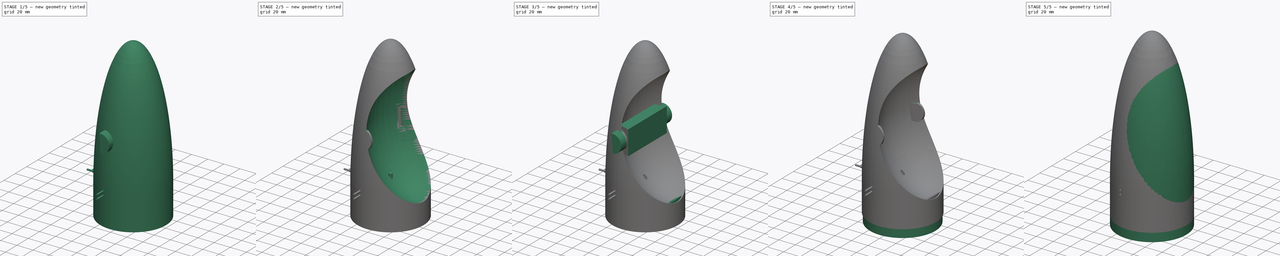
[diagram: build sequence overview — one tinted view per stage of 5, left to right]
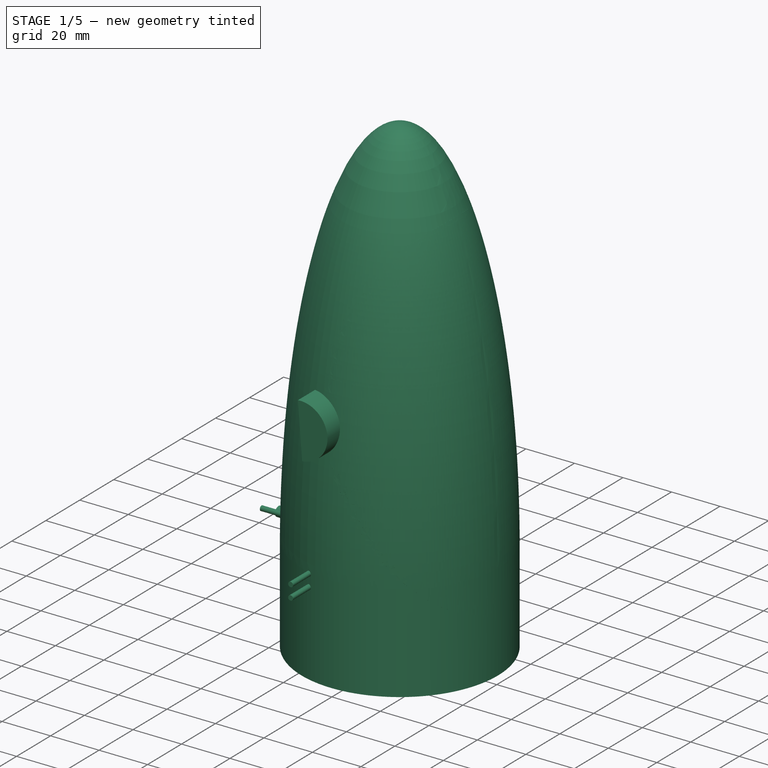
[diagram: stage 1 of 5 — iso view after this stage's code; geometry added in this stage tinted green]
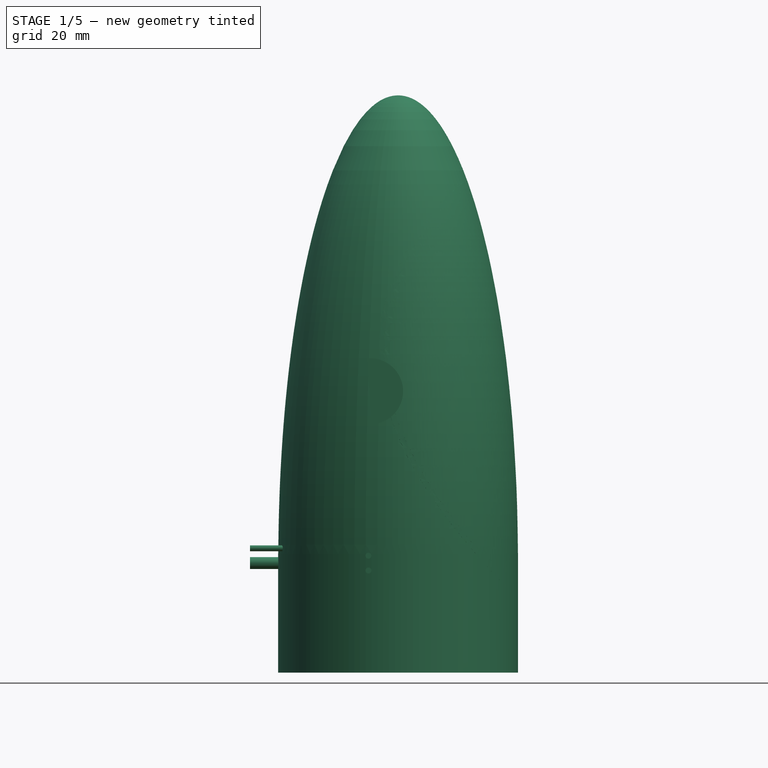
[diagram: stage 1 of 5 — front view after this stage's code; geometry added in this stage tinted green]
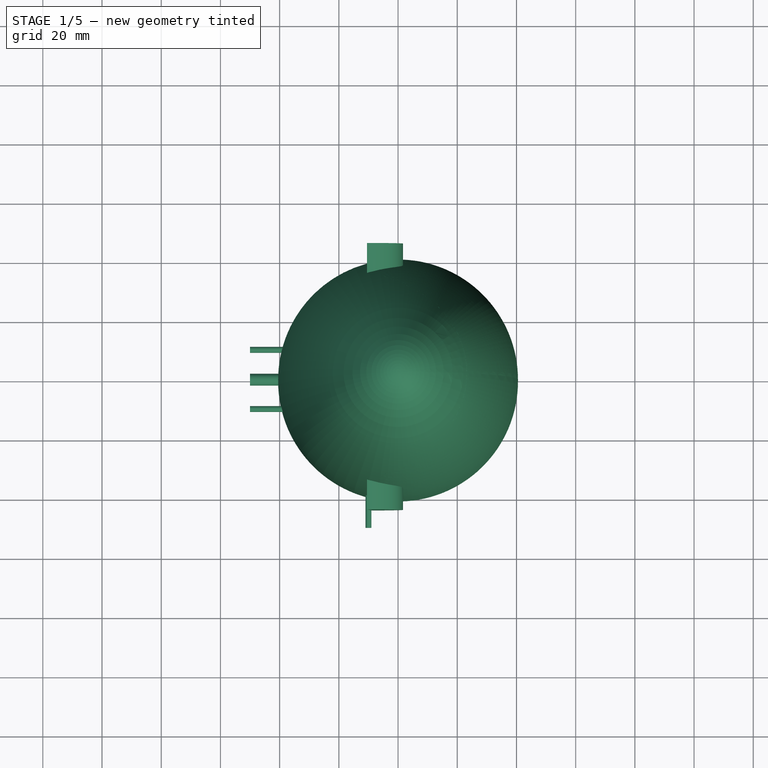
[diagram: stage 1 of 5 — top view after this stage's code; geometry added in this stage tinted green]
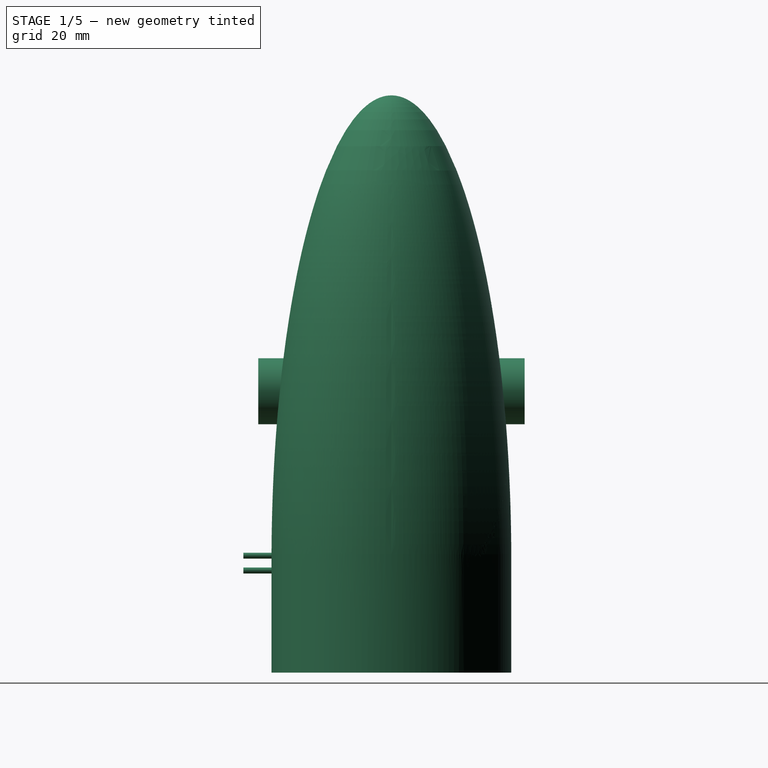
[diagram: stage 1 of 5 — right view after this stage's code; geometry added in this stage tinted green]
FCSTD DOCUMENT  (FreeCAD 0.16R6712 (Git))
Label: Phoenix3D_d78_tommytimer
License: All rights reserved
LicenseURL: http://en.wikipedia.org/wiki/All_rights_reserved
objects: Sketcher::SketchObject×37, PartDesign::Revolution×27, Part::MultiCommon×17, Part::Cut×17, PartDesign::Pad×10, Part::MultiFuse×8, Part::Cylinder×5, Part::Box×4, Part::Chamfer×1
note: 163 computed .brp shape members not serialized (recipe doc carries the construction recipe); baked Part::Feature solids carry a one-line shape summary decoded from their .brp

FEATURE [Sketcher::SketchObject] Sketch116
  Placement = pos=(0,0,0) rot=(1,0,0;1.5708rad)
  sketch-geometry (19):
    g0: LineSegment StartX=39 StartY=40 StartZ=0 EndX=39 EndY=15 EndZ=0
    g1: LineSegment StartX=40.5 StartY=0 StartZ=0 EndX=40.5 EndY=40 EndZ=0
    g2: LineSegment StartX=39 StartY=15 StartZ=0 EndX=39.5 EndY=0 EndZ=0
    g3: LineSegment StartX=39.5 StartY=0 StartZ=0 EndX=40.5 EndY=0 EndZ=0
    g4: LineSegment [constr] StartX=30.3319 StartY=40 StartZ=0 EndX=34.2664 EndY=40 EndZ=0
    g5: ArcOfEllipse CenterX=0 CenterY=37.6991 CenterZ=0 NormalX=0 NormalY=0 NormalZ=1 MajorRadius=157.301 MinorRadius=40.5043 AngleXU=-1.5708 StartAngle=1.58542 EndAngle=3.14159
    g6: LineSegment [constr] StartX=0 StartY=-119.602 StartZ=0 EndX=0 EndY=195 EndZ=0
    g7: LineSegment [constr] StartX=40.5043 StartY=37.6991 StartZ=0 EndX=-40.5043 EndY=37.6991 EndZ=0
    g8: GeomPoint [constr] X=0 Y=-114.298 Z=0
    g9: GeomPoint [constr] X=0 Y=189.696 Z=0
    g10: ArcOfCircle CenterX=0 CenterY=178 CenterZ=0 NormalX=0 NormalY=0 NormalZ=1 Radius=17 StartAngle=1.5708 EndAngle=1.5708
    g11: GeomPoint [constr] X=-3e-12 Y=195 Z=0
    g12: ArcOfCircle CenterX=0 CenterY=178 CenterZ=0 NormalX=0 NormalY=0 NormalZ=1 Radius=15 StartAngle=1.5708 EndAngle=1.5708
    g13: ArcOfEllipse CenterX=0 CenterY=37.6991 CenterZ=0 NormalX=0 NormalY=0 NormalZ=1 MajorRadius=155.301 MinorRadius=39.0043 AngleXU=1.5708 StartAngle=4.72721 EndAngle=6.28319
    g14: LineSegment [constr] StartX=0 StartY=193 StartZ=0 EndX=0 EndY=-117.602 EndZ=0
    g15: LineSegment [constr] StartX=-39.0043 StartY=37.6991 StartZ=0 EndX=39.0043 EndY=37.6991 EndZ=0
    g16: GeomPoint [constr] X=0 Y=188.022 Z=0
    g17: GeomPoint [constr] X=0 Y=-112.624 Z=0
    g18: LineSegment StartX=0 StartY=195 StartZ=0 EndX=0 EndY=193 EndZ=0
  constraints (38):
    c: Vertical(g0)
    c: PointOnObject(g1,g-1)
    c: Vertical(g1)
    c: DistanceX(g-1,g1) = 40.5
    c: Coincident(g0,g2)
    c: Coincident(g2,g3)
    c: Coincident(g3,g1)
    c: Horizontal(g3)
    c: DistanceX(g2,g1) = 1
    c: DistanceY(g2,g0) = 15
    c: Horizontal(g4)
    c: InternalAlignment(g6-g9 -> g5) x4
    c: Vertical(g6)
    c: PointOnObject(g5,g-2)
    c: Coincident(g5,g1)
    c: PointOnObject(g10,g-2)
    c: PointOnObject(g10,g-2)
    c: Coincident(g5,g10)
    c: PointOnObject(g11,g5)
    c: PointOnObject(g11,g10)
    c: Tangent(g5,g10,g11) = -1.5708
    c: DistanceY(g-1,g6) = 195
    c: PointOnObject(g1,g4)
    c: PointOnObject(g0,g4)
    c: DistanceY(g-1,g4) = 40
    c: Radius(g10) = 17
    c: Coincident(g12,g10)
    c: PointOnObject(g12,g-2)
    c: Radius(g12) = 15
    c: InternalAlignment(g14-g17 -> g13) x4
    c: Vertical(g14)
    c: Coincident(g13,g5)
    c: Coincident(g13,g12)
    c: Coincident(g13,g0)
    c: DistanceX(g0,g1) = 1.5
    c: Coincident(g18,g6)
    c: Coincident(g18,g12)
    c: Distance(g12,g5) = 2
FEATURE [PartDesign::Revolution] Revolution040
  Angle = 360
  Axis = (0,0,1)
  Base = (0,0,0)
  Placement = pos=(0,0,0) rot=(1,0,0;1.5708rad)
  ReferenceAxis = -> Sketch116 [V_Axis]
  Reversed = true
  Sketch = -> Sketch116
FEATURE [Sketcher::SketchObject] Sketch117
  Placement = pos=(0,0,0) rot=(1,0,0;1.5708rad)
  sketch-geometry (7):
    g0: LineSegment [constr] StartX=24.6736 StartY=175.154 StartZ=0 EndX=39 EndY=-31.3969 EndZ=0
    g1: ArcOfEllipse CenterX=30.2331 CenterY=95 CenterZ=0 NormalX=0 NormalY=0 NormalZ=1 MajorRadius=70.3324 MinorRadius=50 AngleXU=1.5708 StartAngle=3.23885 EndAngle=6.38044
    g2: LineSegment [constr] StartX=30.2331 StartY=165.332 StartZ=0 EndX=30.2331 EndY=24.6676 EndZ=0
    g3: LineSegment [constr] StartX=-19.7669 StartY=95 StartZ=0 EndX=80.2331 EndY=95 EndZ=0
    g4: GeomPoint [constr] X=30.2331 Y=144.464 Z=0
    g5: GeomPoint [constr] X=30.2331 Y=45.5365 Z=0
    g6: LineSegment StartX=25.3779 StartY=165 StartZ=0 EndX=35.0883 EndY=25 EndZ=0
  constraints (11):
    c: DistanceX(g-1,g0) = 39
    c: InternalAlignment(g2-g5 -> g1) x4
    c: PointOnObject(g1,g0)
    c: PointOnObject(g1,g0)
    c: PointOnObject(g1,g0)
    c: Vertical(g2)
    c: DistanceY(g1,g1) = 140
    c: DistanceY(g-1,g1) = 165
    c: DistanceX(g1,g3) = 50
    c: Coincident(g6,g1)
    c: Coincident(g6,g1)
FEATURE [PartDesign::Revolution] Revolution041  label="Öffnung_dense015"
  Angle = 360
  Axis = (14.3264,0,-206.551)
  Base = (24.6736,0,175.154)
  Placement = pos=(0,0,0) rot=(1,0,0;1.5708rad)
  ReferenceAxis = -> Sketch117 [Axis0]
  Sketch = -> Sketch117
FEATURE [Sketcher::SketchObject] Sketch137
  Placement = pos=(0,0,0) rot=(1,0,0;1.5708rad)
  sketch-geometry (7):
    g0: LineSegment [constr] StartX=24.6736 StartY=175.154 StartZ=0 EndX=39 EndY=-31.3969 EndZ=0
    g1: ArcOfEllipse CenterX=30.2331 CenterY=95 CenterZ=0 NormalX=0 NormalY=0 NormalZ=1 MajorRadius=70.3324 MinorRadius=50 AngleXU=1.5708 StartAngle=3.23885 EndAngle=6.38044
    g2: LineSegment [constr] StartX=30.2331 StartY=165.332 StartZ=0 EndX=30.2331 EndY=24.6676 EndZ=0
    g3: LineSegment [constr] StartX=-19.7669 StartY=95 StartZ=0 EndX=80.2331 EndY=95 EndZ=0
    g4: GeomPoint [constr] X=30.2331 Y=144.464 Z=0
    g5: GeomPoint [constr] X=30.2331 Y=45.5365 Z=0
    g6: LineSegment StartX=25.3779 StartY=165 StartZ=0 EndX=35.0883 EndY=25 EndZ=0
  constraints (11):
    c: DistanceX(g-1,g0) = 39
    c: InternalAlignment(g2-g5 -> g1) x4
    c: PointOnObject(g1,g0)
    c: PointOnObject(g1,g0)
    c: PointOnObject(g1,g0)
    c: Vertical(g2)
    c: DistanceY(g1,g1) = 140
    c: DistanceY(g-1,g1) = 165
    c: DistanceX(g1,g3) = 50
    c: Coincident(g6,g1)
    c: Coincident(g6,g1)
FEATURE [PartDesign::Revolution] Revolution057  label="Öffnung_dense022"
  Angle = 360
  Axis = (14.3264,0,-206.551)
  Base = (24.6736,0,175.154)
  Placement = pos=(0,0,0) rot=(1,0,0;1.5708rad)
  ReferenceAxis = -> Sketch137 [Axis0]
  Sketch = -> Sketch137
FEATURE [Sketcher::SketchObject] Sketch138
  Placement = pos=(0,0,0) rot=(1,0,0;1.5708rad)
  sketch-geometry (9):
    g0: LineSegment StartX=40.5 StartY=0 StartZ=0 EndX=40.5 EndY=40 EndZ=0
    g1: ArcOfEllipse CenterX=0 CenterY=37.6991 CenterZ=0 NormalX=0 NormalY=0 NormalZ=1 MajorRadius=157.301 MinorRadius=40.5043 AngleXU=-1.5708 StartAngle=1.58542 EndAngle=3.14159
    g2: LineSegment [constr] StartX=40.5043 StartY=37.6991 StartZ=0 EndX=-40.5043 EndY=37.6991 EndZ=0
    g3: GeomPoint [constr] X=-7.7467e-08 Y=-114.298 Z=0
    g4: GeomPoint [constr] X=7.7467e-08 Y=189.696 Z=0
    g5: ArcOfCircle CenterX=0 CenterY=178 CenterZ=0 NormalX=0 NormalY=0 NormalZ=1 Radius=17 StartAngle=1.5708 EndAngle=1.5708
    g6: GeomPoint [constr] X=1.93676e-07 Y=195 Z=0
    g7: LineSegment StartX=0 StartY=0 StartZ=0 EndX=40.5 EndY=0 EndZ=0
    g8: LineSegment StartX=0 StartY=0 StartZ=0 EndX=0 EndY=195 EndZ=0
  constraints (21):
    c: Vertical(g0)
    c: DistanceX(g-1,g0) = 40.5
    c: InternalAlignment(g2,g1)
    c: InternalAlignment(g3,g1)
    c: InternalAlignment(g4,g1)
    c: PointOnObject(g1,g-2)
    c: Coincident(g1,g0)
    c: PointOnObject(g5,g-2)
    c: PointOnObject(g5,g-2)
    c: Coincident(g1,g5)
    c: PointOnObject(g6,g1)
    c: PointOnObject(g6,g5)
    c: Tangent(g1,g5,g6) = -1.5708
    c: Radius(g5) = 17
    c: DistanceY(g2,g0) = 2.30092
    c: Coincident(g7,g-1)
    c: Coincident(g7,g0)
    c: Horizontal(g7)
    c: Coincident(g8,g-1)
    c: Coincident(g8,g1)
    c: Vertical(g8)
FEATURE [PartDesign::Revolution] Revolution058
  Angle = 360
  Axis = (0,0,1)
  Base = (0,0,0)
  Placement = pos=(0,0,0) rot=(1,0,0;1.5708rad)
  ReferenceAxis = -> Sketch138 [V_Axis]
  Reversed = true
  Sketch = -> Sketch138
FEATURE [Part::MultiCommon] Common038
  Shapes = -> [Revolution057,Revolution058]
FEATURE [Sketcher::SketchObject] Sketch139
  Placement = pos=(0,0,0) rot=(1,0,0;1.5708rad)
  sketch-geometry (10):
    g0: LineSegment StartX=39 StartY=40 StartZ=0 EndX=39 EndY=15 EndZ=0
    g1: LineSegment StartX=39 StartY=15 StartZ=0 EndX=39.5 EndY=0 EndZ=0
    g2: ArcOfCircle CenterX=0 CenterY=178 CenterZ=0 NormalX=0 NormalY=0 NormalZ=1 Radius=15 StartAngle=1.5708 EndAngle=1.5708
    g3: ArcOfEllipse CenterX=0 CenterY=37.6991 CenterZ=0 NormalX=0 NormalY=0 NormalZ=1 MajorRadius=155.301 MinorRadius=39.0043 AngleXU=1.5708 StartAngle=4.72721 EndAngle=6.28319
    g4: LineSegment [constr] StartX=0 StartY=193 StartZ=0 EndX=0 EndY=-117.602 EndZ=0
    g5: LineSegment [constr] StartX=-39.0043 StartY=37.6991 StartZ=0 EndX=39.0043 EndY=37.6991 EndZ=0
    g6: GeomPoint [constr] X=-1.6e-11 Y=188.022 Z=0
    g7: GeomPoint [constr] X=0 Y=-112.624 Z=0
    g8: LineSegment StartX=0 StartY=0 StartZ=0 EndX=-2e-12 EndY=193 EndZ=0
    g9: LineSegment StartX=0 StartY=0 StartZ=0 EndX=39.5 EndY=0 EndZ=0
  constraints (15):
    c: Vertical(g0)
    c: Coincident(g0,g1)
    c: DistanceY(g1,g0) = 15
    c: PointOnObject(g2,g-2)
    c: Radius(g2) = 15
    c: InternalAlignment(g4-g7 -> g3) x4
    c: Vertical(g4)
    c: Coincident(g3,g2)
    c: Coincident(g3,g0)
    c: Coincident(g8,g2)
    c: Coincident(g8,g-1)
    c: Coincident(g9,g-1)
    c: Coincident(g9,g1)
    c: Horizontal(g9)
    c: DistanceX(g9,g9) = 39.5
FEATURE [PartDesign::Revolution] Revolution059
  Angle = 360
  Axis = (0,0,1)
  Base = (0,0,0)
  Placement = pos=(0,0,0) rot=(1,0,0;1.5708rad)
  ReferenceAxis = -> Sketch139 [V_Axis]
  Reversed = true
  Sketch = -> Sketch139
FEATURE [Part::Cut] Cut033  label="Fallschirmtüre008"
  Base = -> Common038
  Tool = -> Revolution059
FEATURE [Sketcher::SketchObject] Sketch140
  Placement = pos=(0,0,0) rot=(1,0,0;1.5708rad)
  sketch-geometry (2):
    g0: ArcOfCircle CenterX=-9.47802 CenterY=95.0493 CenterZ=0 NormalX=0 NormalY=0 NormalZ=1 Radius=11.1643 StartAngle=4.77716 EndAngle=7.94536
    g1: LineSegment StartX=-10.4968 StartY=106.167 StartZ=0 EndX=-8.75536 EndY=83.9085 EndZ=0
  constraints (2):
    c: Coincident(g1,g0)
    c: Coincident(g1,g0)
FEATURE [PartDesign::Pad] Pad016
  Length = 90
  Length2 = 100
  Midplane = true
  Placement = pos=(0,0,0) rot=(1,0,0;1.5708rad)
  Sketch = -> Sketch140
  Type = 0
FEATURE [Sketcher::SketchObject] Sketch141
  Placement = pos=(0,0,80) rot=(0,0,1;0rad)
  sketch-geometry (4):
    g0: LineSegment StartX=-10.4081 StartY=30.3819 StartZ=0 EndX=-10.4081 EndY=-30.3819 EndZ=0
    g1: LineSegment StartX=-10.4081 StartY=-30.3819 StartZ=0 EndX=2.8182 EndY=-34.1326 EndZ=0
    g2: LineSegment StartX=2.8182 StartY=-34.1326 StartZ=0 EndX=2.8182 EndY=34.1326 EndZ=0
    g3: LineSegment StartX=2.8182 StartY=34.1326 StartZ=0 EndX=-10.4081 EndY=30.3819 EndZ=0
  constraints (7):
    c: Vertical(g0)
    c: Coincident(g0,g1)
    c: Coincident(g1,g2)
    c: Coincident(g2,g3)
    c: Coincident(g3,g0)
    c: Symmetric(g0,g0,g-1)
    c: Symmetric(g2,g1,g-1)
FEATURE [PartDesign::Pad] Pad017
  Length = 30
  Length2 = 100
  Placement = pos=(0,0,80) rot=(0,0,1;0rad)
  Sketch = -> Sketch141
  Type = 0
FEATURE [Sketcher::SketchObject] Sketch142
  Placement = pos=(0,0,0) rot=(1,0,0;1.5708rad)
  sketch-geometry (7):
    g0: LineSegment [constr] StartX=25.5796 StartY=175.154 StartZ=0 EndX=39 EndY=-31.3979 EndZ=0
    g1: ArcOfEllipse CenterX=30.7875 CenterY=95 CenterZ=0 NormalX=0 NormalY=0 NormalZ=1 MajorRadius=71.7927 MinorRadius=51.5 AngleXU=1.5708 StartAngle=3.23192 EndAngle=6.37351
    g2: LineSegment [constr] StartX=30.7875 StartY=166.793 StartZ=0 EndX=30.7875 EndY=23.2073 EndZ=0
    g3: LineSegment [constr] StartX=-20.7125 StartY=95 StartZ=0 EndX=82.2875 EndY=95 EndZ=0
    g4: GeomPoint [constr] X=30.7875 Y=145.019 Z=0
    g5: GeomPoint [constr] X=30.7875 Y=44.9806 Z=0
    g6: LineSegment StartX=26.1419 StartY=166.5 StartZ=0 EndX=35.4331 EndY=23.5 EndZ=0
  constraints (11):
    c: DistanceX(g-1,g0) = 39
    c: InternalAlignment(g2-g5 -> g1) x4
    c: PointOnObject(g1,g0)
    c: PointOnObject(g1,g0)
    c: PointOnObject(g1,g0)
    c: Vertical(g2)
    c: DistanceY(g1,g1) = 143
    c: DistanceY(g-1,g1) = 166.5
    c: DistanceX(g1,g3) = 51.5
    c: Coincident(g6,g1)
    c: Coincident(g6,g1)
FEATURE [PartDesign::Revolution] Revolution060  label="Öffnung_dense023"
  Angle = 360
  Axis = (13.4204,0,-206.552)
  Base = (25.5796,0,175.154)
  Placement = pos=(0,0,0) rot=(1,0,0;1.5708rad)
  ReferenceAxis = -> Sketch142 [Axis0]
  Sketch = -> Sketch142
FEATURE [Sketcher::SketchObject] Sketch143
  Placement = pos=(0,0,0) rot=(1,0,0;1.5708rad)
  sketch-geometry (9):
    g0: LineSegment StartX=40.5 StartY=0 StartZ=0 EndX=40.5 EndY=40 EndZ=0
    g1: ArcOfEllipse CenterX=0 CenterY=37.6991 CenterZ=0 NormalX=0 NormalY=0 NormalZ=1 MajorRadius=157.301 MinorRadius=40.5043 AngleXU=-1.5708 StartAngle=1.58542 EndAngle=3.14159
    g2: LineSegment [constr] StartX=40.5043 StartY=37.6991 StartZ=0 EndX=-40.5043 EndY=37.6991 EndZ=0
    g3: GeomPoint [constr] X=-7.7467e-08 Y=-114.298 Z=0
    g4: GeomPoint [constr] X=7.7467e-08 Y=189.696 Z=0
    g5: ArcOfCircle CenterX=0 CenterY=178 CenterZ=0 NormalX=0 NormalY=0 NormalZ=1 Radius=17 StartAngle=1.5708 EndAngle=1.5708
    g6: GeomPoint [constr] X=1.93676e-07 Y=195 Z=0
    g7: LineSegment StartX=0 StartY=0 StartZ=0 EndX=40.5 EndY=0 EndZ=0
    g8: LineSegment StartX=0 StartY=0 StartZ=0 EndX=0 EndY=195 EndZ=0
  constraints (21):
    c: Vertical(g0)
    c: DistanceX(g-1,g0) = 40.5
    c: InternalAlignment(g2,g1)
    c: InternalAlignment(g3,g1)
    c: InternalAlignment(g4,g1)
    c: PointOnObject(g1,g-2)
    c: Coincident(g1,g0)
    c: PointOnObject(g5,g-2)
    c: PointOnObject(g5,g-2)
    c: Coincident(g1,g5)
    c: PointOnObject(g6,g1)
    c: PointOnObject(g6,g5)
    c: Tangent(g1,g5,g6) = -1.5708
    c: Radius(g5) = 17
    c: DistanceY(g2,g0) = 2.30092
    c: Coincident(g7,g-1)
    c: Coincident(g7,g0)
    c: Horizontal(g7)
    c: Coincident(g8,g-1)
    c: Coincident(g8,g1)
    c: Vertical(g8)
FEATURE [PartDesign::Revolution] Revolution061
  Angle = 360
  Axis = (0,0,1)
  Base = (0,0,0)
  Placement = pos=(0,0,0) rot=(1,0,0;1.5708rad)
  ReferenceAxis = -> Sketch143 [V_Axis]
  Reversed = true
  Sketch = -> Sketch143
FEATURE [Part::MultiCommon] Common040
  Shapes = -> [Revolution060,Revolution061]
FEATURE [Part::Cut] Cut036
  Base = -> Revolution040
  Tool = -> Revolution041
FEATURE [Part::Cylinder] Cylinder007  label="Zylinder007"
  Angle = 360
  Height = 4
  Placement = pos=(-16,32.9,95) rot=(1,0,0;1.5708rad)
  Radius = 2
FEATURE [Part::Cylinder] Cylinder008  label="Zylinder008"
  Angle = 360
  Height = 4
  Placement = pos=(-16,-28.9,95) rot=(1,0,0;1.5708rad)
  Radius = 2
FEATURE [Sketcher::SketchObject] Sketch013
  Placement = pos=(-50,0,-18) rot=(0.57735,0.57735,0.57735;2.0944rad)
  sketch-geometry (3):
    g0: Circle CenterX=0 CenterY=55 CenterZ=0 NormalX=0 NormalY=0 NormalZ=1 Radius=2
    g1: Circle CenterX=10 CenterY=60 CenterZ=0 NormalX=0 NormalY=0 NormalZ=1 Radius=1
    g2: Circle CenterX=-10 CenterY=60 CenterZ=0 NormalX=0 NormalY=0 NormalZ=1 Radius=1
  constraints (8):
    c: Symmetric(g1,g2,g-2)
    c: Equal(g2,g1)
    c: Radius(g1) = 1
    c: DistanceX(g2,g1) = 20
    c: PointOnObject(g0,g-2)
    c: DistanceY(g0,g2) = 5
    c: Radius(g0) = 2
    c: DistanceY(g-1,g1) = 60
FEATURE [PartDesign::Pad] Pad  label="Tommy Timer"
  Length = 20
  Length2 = 100
  Placement = pos=(-50,0,-18) rot=(0.57735,0.57735,0.57735;2.0944rad)
  Sketch = -> Sketch013
  Type = 0
FEATURE [Sketcher::SketchObject] Sketch014
  Placement = pos=(-110,-50,37) rot=(0.57735,0.57735,-0.57735;2.0944rad)
  sketch-geometry (2):
    g0: Circle CenterX=-2.5 CenterY=100 CenterZ=0 NormalX=0 NormalY=0 NormalZ=1 Radius=1
    g1: Circle CenterX=2.5 CenterY=100 CenterZ=0 NormalX=0 NormalY=0 NormalZ=1 Radius=1
  constraints (5):
    c: Symmetric(g0,g1,g-2)
    c: DistanceY(g-1,g1) = 100
    c: Radius(g1) = 1
    c: Equal(g0,g1)
    c: DistanceX(g0,g-1) = 2.5
FEATURE [PartDesign::Pad] Pad003  label="Gummihaken"
  Length = 20
  Length2 = 100
  Placement = pos=(-110,-50,37) rot=(0.57735,0.57735,-0.57735;2.0944rad)
  Reversed = true
  Sketch = -> Sketch014
  Type = 0
FEATURE [Part::MultiFuse] Fusion014
  Shapes = -> [Pad,Pad003]
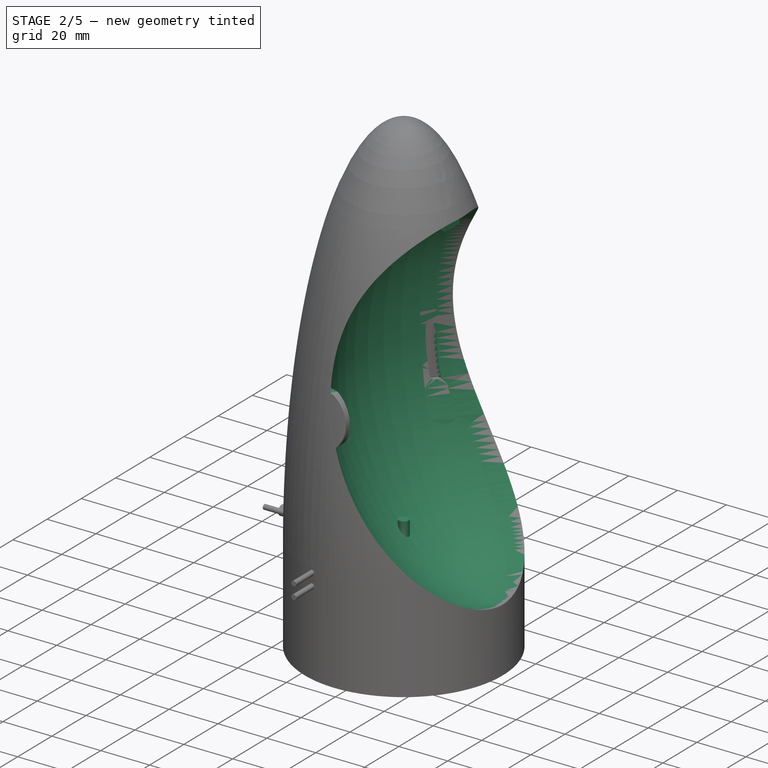
[diagram: stage 2 of 5 — iso view after this stage's code; geometry added in this stage tinted green]
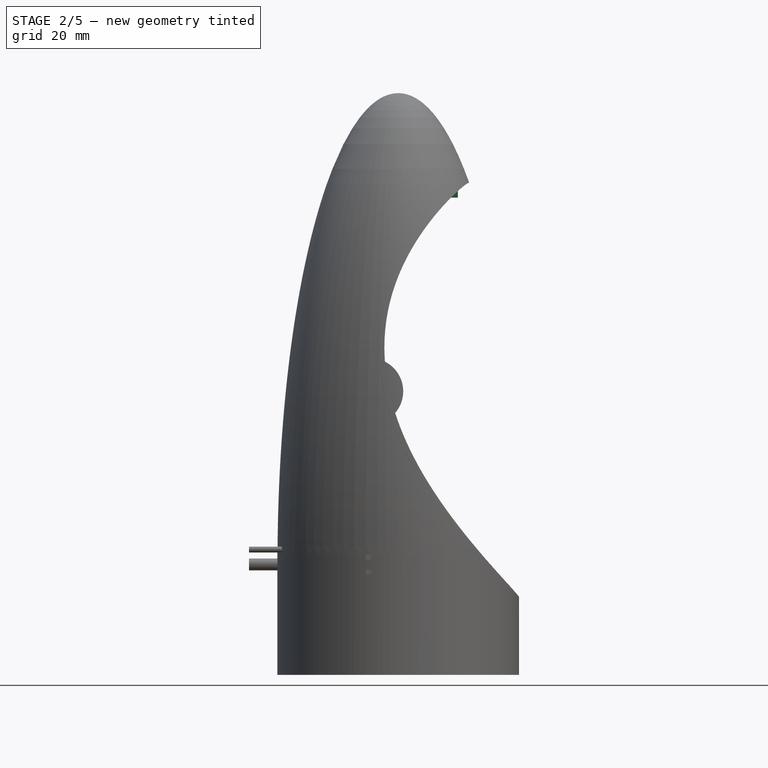
[diagram: stage 2 of 5 — front view after this stage's code; geometry added in this stage tinted green]
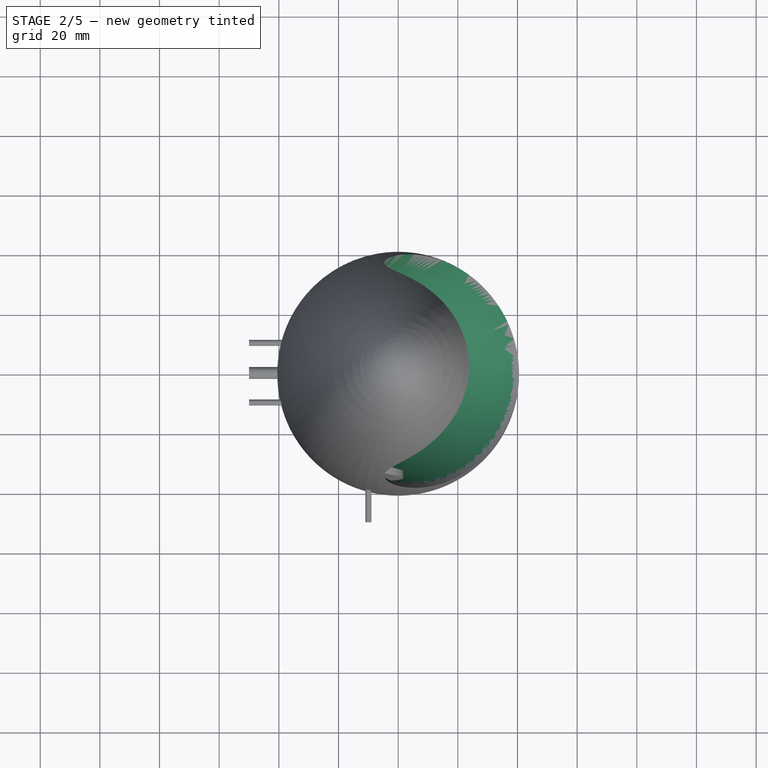
[diagram: stage 2 of 5 — top view after this stage's code; geometry added in this stage tinted green]
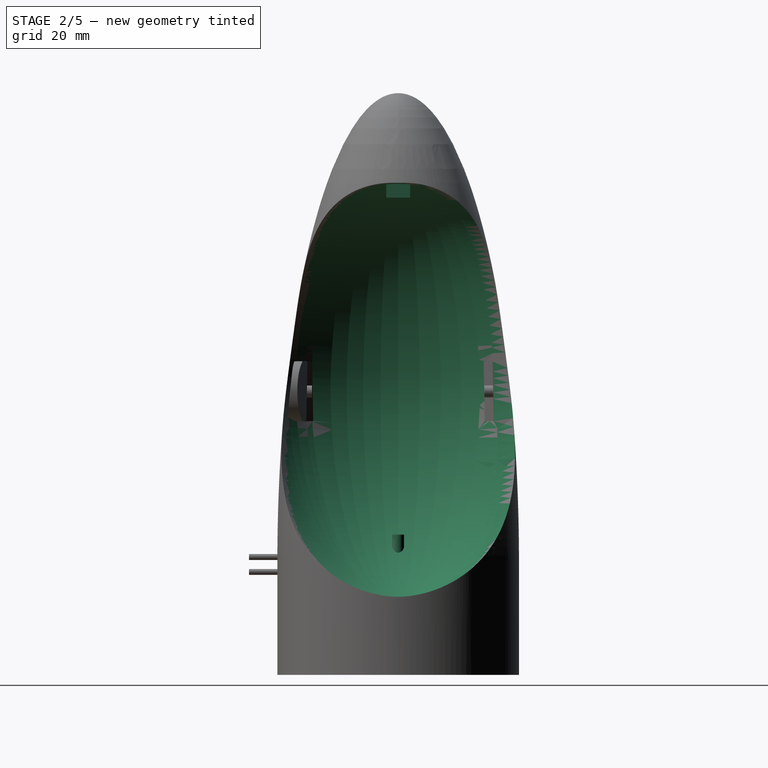
[diagram: stage 2 of 5 — right view after this stage's code; geometry added in this stage tinted green]
FEATURE [Sketcher::SketchObject] Sketch118
  Placement = pos=(0,0,0) rot=(1,0,0;1.5708rad)
  sketch-geometry (7):
    g0: LineSegment [constr] StartX=24.6736 StartY=175.154 StartZ=0 EndX=39 EndY=-31.3969 EndZ=0
    g1: ArcOfEllipse CenterX=30.2331 CenterY=95 CenterZ=0 NormalX=0 NormalY=0 NormalZ=1 MajorRadius=70.3324 MinorRadius=50 AngleXU=1.5708 StartAngle=3.23885 EndAngle=6.38044
    g2: LineSegment [constr] StartX=30.2331 StartY=165.332 StartZ=0 EndX=30.2331 EndY=24.6676 EndZ=0
    g3: LineSegment [constr] StartX=-19.7669 StartY=95 StartZ=0 EndX=80.2331 EndY=95 EndZ=0
    g4: GeomPoint [constr] X=30.2331 Y=144.464 Z=0
    g5: GeomPoint [constr] X=30.2331 Y=45.5365 Z=0
    g6: LineSegment StartX=25.3779 StartY=165 StartZ=0 EndX=35.0883 EndY=25 EndZ=0
  constraints (11):
    c: DistanceX(g-1,g0) = 39
    c: InternalAlignment(g2-g5 -> g1) x4
    c: PointOnObject(g1,g0)
    c: PointOnObject(g1,g0)
    c: PointOnObject(g1,g0)
    c: Vertical(g2)
    c: DistanceY(g1,g1) = 140
    c: DistanceY(g-1,g1) = 165
    c: DistanceX(g1,g3) = 50
    c: Coincident(g6,g1)
    c: Coincident(g6,g1)
FEATURE [PartDesign::Revolution] Revolution042  label="Öffnung_dense016"
  Angle = 360
  Axis = (14.3264,0,-206.551)
  Base = (24.6736,0,175.154)
  Placement = pos=(0,0,0) rot=(1,0,0;1.5708rad)
  ReferenceAxis = -> Sketch118 [Axis0]
  Sketch = -> Sketch118
FEATURE [Sketcher::SketchObject] Sketch119
  Placement = pos=(0,0,0) rot=(1,0,0;1.5708rad)
  sketch-geometry (7):
    g0: LineSegment [constr] StartX=25.5796 StartY=175.154 StartZ=0 EndX=39 EndY=-31.3979 EndZ=0
    g1: ArcOfEllipse CenterX=30.7875 CenterY=95 CenterZ=0 NormalX=0 NormalY=0 NormalZ=1 MajorRadius=71.7927 MinorRadius=51.5 AngleXU=1.5708 StartAngle=3.23192 EndAngle=6.37351
    g2: LineSegment [constr] StartX=30.7875 StartY=166.793 StartZ=0 EndX=30.7875 EndY=23.2073 EndZ=0
    g3: LineSegment [constr] StartX=-20.7125 StartY=95 StartZ=0 EndX=82.2875 EndY=95 EndZ=0
    g4: GeomPoint [constr] X=30.7875 Y=145.019 Z=0
    g5: GeomPoint [constr] X=30.7875 Y=44.9806 Z=0
    g6: LineSegment StartX=26.1419 StartY=166.5 StartZ=0 EndX=35.4331 EndY=23.5 EndZ=0
  constraints (11):
    c: DistanceX(g-1,g0) = 39
    c: InternalAlignment(g2-g5 -> g1) x4
    c: PointOnObject(g1,g0)
    c: PointOnObject(g1,g0)
    c: PointOnObject(g1,g0)
    c: Vertical(g2)
    c: DistanceY(g1,g1) = 143
    c: DistanceY(g-1,g1) = 166.5
    c: DistanceX(g1,g3) = 51.5
    c: Coincident(g6,g1)
    c: Coincident(g6,g1)
FEATURE [PartDesign::Revolution] Revolution043  label="Öffnung_dense017"
  Angle = 360
  Axis = (13.4204,0,-206.552)
  Base = (25.5796,0,175.154)
  Placement = pos=(0,0,0) rot=(1,0,0;1.5708rad)
  ReferenceAxis = -> Sketch119 [Axis0]
  Sketch = -> Sketch119
FEATURE [Sketcher::SketchObject] Sketch120
  Placement = pos=(0,0,0) rot=(1,0,0;1.5708rad)
  sketch-geometry (9):
    g0: LineSegment StartX=40.5 StartY=0 StartZ=0 EndX=40.5 EndY=40 EndZ=0
    g1: ArcOfEllipse CenterX=0 CenterY=37.6991 CenterZ=0 NormalX=0 NormalY=0 NormalZ=1 MajorRadius=157.301 MinorRadius=40.5043 AngleXU=-1.5708 StartAngle=1.58542 EndAngle=3.14159
    g2: LineSegment [constr] StartX=40.5043 StartY=37.6991 StartZ=0 EndX=-40.5043 EndY=37.6991 EndZ=0
    g3: GeomPoint [constr] X=-7.7467e-08 Y=-114.298 Z=0
    g4: GeomPoint [constr] X=7.7467e-08 Y=189.696 Z=0
    g5: ArcOfCircle CenterX=0 CenterY=178 CenterZ=0 NormalX=0 NormalY=0 NormalZ=1 Radius=17 StartAngle=1.5708 EndAngle=1.5708
    g6: GeomPoint [constr] X=1.93676e-07 Y=195 Z=0
    g7: LineSegment StartX=0 StartY=0 StartZ=0 EndX=40.5 EndY=0 EndZ=0
    g8: LineSegment StartX=0 StartY=0 StartZ=0 EndX=0 EndY=195 EndZ=0
  constraints (21):
    c: Vertical(g0)
    c: DistanceX(g-1,g0) = 40.5
    c: InternalAlignment(g2,g1)
    c: InternalAlignment(g3,g1)
    c: InternalAlignment(g4,g1)
    c: PointOnObject(g1,g-2)
    c: Coincident(g1,g0)
    c: PointOnObject(g5,g-2)
    c: PointOnObject(g5,g-2)
    c: Coincident(g1,g5)
    c: PointOnObject(g6,g1)
    c: PointOnObject(g6,g5)
    c: Tangent(g1,g5,g6) = -1.5708
    c: Radius(g5) = 17
    c: DistanceY(g2,g0) = 2.30092
    c: Coincident(g7,g-1)
    c: Coincident(g7,g0)
    c: Horizontal(g7)
    c: Coincident(g8,g-1)
    c: Coincident(g8,g1)
    c: Vertical(g8)
FEATURE [PartDesign::Revolution] Revolution044
  Angle = 360
  Axis = (0,0,1)
  Base = (0,0,0)
  Placement = pos=(0,0,0) rot=(1,0,0;1.5708rad)
  ReferenceAxis = -> Sketch120 [V_Axis]
  Reversed = true
  Sketch = -> Sketch120
FEATURE [Part::MultiCommon] Common028
  Shapes = -> [Revolution043,Revolution044]
FEATURE [Part::Cut] Cut023
  Base = -> Common028
  Tool = -> Revolution042
FEATURE [Part::Box] Box006  label="Federlasche003"
  Height = 20
  Length = 100
  Placement = pos=(-19,29,85) rot=(1,0,0;0.017453rad)
  Width = 3
FEATURE [Part::Box] Box007  label="Federlasche004"
  Height = 20
  Length = 100
  Placement = pos=(-19,-31.5,85) rot=(1,0,0;0.017453rad)
  Width = 3
FEATURE [Part::Cut] Cut024
  Base = -> Cut023
  Tool = -> Box006
FEATURE [Part::Cut] Cut025
  Base = -> Cut024
  Tool = -> Box007
FEATURE [Part::Cylinder] Cylinder006  label="Zylinder006"
  Angle = 360
  Height = 10
  Placement = pos=(0,0,37) rot=(0,0,1;0rad)
  Radius = 2
FEATURE [Sketcher::SketchObject] Sketch127
  Placement = pos=(0,0,160) rot=(0,0,1;0rad)
  sketch-geometry (4):
    g0: LineSegment StartX=15 StartY=3 StartZ=0 EndX=20 EndY=4 EndZ=0
    g1: LineSegment StartX=20 StartY=4 StartZ=0 EndX=20 EndY=-4 EndZ=0
    g2: LineSegment StartX=20 StartY=-4 StartZ=0 EndX=15 EndY=-3 EndZ=0
    g3: LineSegment StartX=15 StartY=-3 StartZ=0 EndX=15 EndY=3 EndZ=0
  constraints (12):
    c: Coincident(g0,g1)
    c: Vertical(g1)
    c: Coincident(g1,g2)
    c: Coincident(g2,g3)
    c: Coincident(g3,g0)
    c: Vertical(g3)
    c: Symmetric(g0,g2,g-1)
    c: Symmetric(g0,g1,g-1)
    c: DistanceY(g1,g1) = 8
    c: DistanceY(g3,g3) = 6
    c: DistanceX(g0,g0) = 5
    c: DistanceX(g-1,g0) = 15
FEATURE [PartDesign::Pad] Pad013
  Length = 10
  Length2 = 100
  Placement = pos=(0,0,160) rot=(0,0,1;0rad)
  Sketch = -> Sketch127
  Type = 0
FEATURE [Part::Box] Box009  label="Seitenhalter 006"
  Height = 20
  Length = 30
  Placement = pos=(-19,-40,85) rot=(1,0,0;0.017453rad)
  Width = 10
FEATURE [Sketcher::SketchObject] Sketch136
  Placement = pos=(0,0,0) rot=(1,0,0;1.5708rad)
  sketch-geometry (5):
    g0: LineSegment StartX=40.5 StartY=0 StartZ=0 EndX=40.5 EndY=40 EndZ=0
    g1: ArcOfEllipse CenterX=-5.9389e-08 CenterY=37.6991 CenterZ=0 NormalX=0 NormalY=0 NormalZ=1 MajorRadius=157.301 MinorRadius=40.5043 AngleXU=-1.5708 StartAngle=1.58542 EndAngle=3.14159
    g2: GeomPoint [constr] X=-1.6e-11 Y=-114.298 Z=0
    g3: LineSegment StartX=40.5 StartY=0 StartZ=0 EndX=0 EndY=0 EndZ=0
    g4: LineSegment StartX=0 StartY=195 StartZ=0 EndX=0 EndY=0 EndZ=0
  constraints (9):
    c: PointOnObject(g0,g-1)
    c: Vertical(g0)
    c: DistanceX(g-1,g0) = 40.5
    c: InternalAlignment(g2,g1)
    c: Coincident(g3,g0)
    c: Coincident(g3,g-1)
    c: Coincident(g4,g1)
    c: Coincident(g4,g-1)
    c: Vertical(g4)
FEATURE [PartDesign::Revolution] Revolution056
  Angle = 360
  Axis = (0,0,1)
  Base = (0,0,0)
  Placement = pos=(0,0,0) rot=(1,0,0;1.5708rad)
  ReferenceAxis = -> Sketch136 [V_Axis]
  Reversed = true
  Sketch = -> Sketch136
FEATURE [Part::MultiCommon] Common037
  Shapes = -> [Revolution056,Box009]
FEATURE [Part::Cut] Cut034
  Base = -> Common037
  Tool = -> Cut033
FEATURE [Part::MultiCommon] Common039
  Shapes = -> [Cut034,Pad016]
FEATURE [Part::Cut] Cut035
  Base = -> Common039
  Tool = -> Pad017
FEATURE [Part::MultiCommon] Common041
  Shapes = -> [Cut035,Common040]
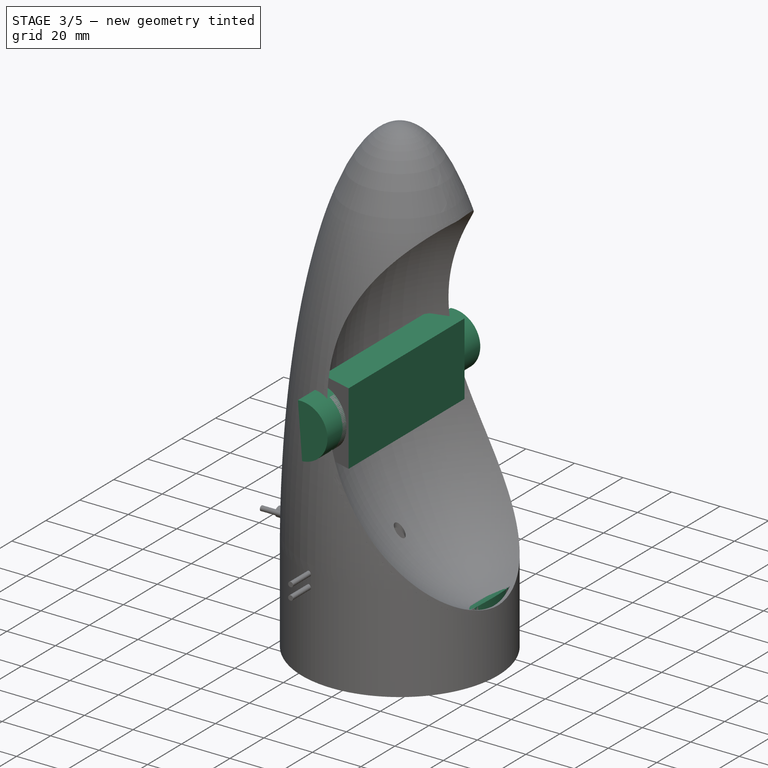
[diagram: stage 3 of 5 — iso view after this stage's code; geometry added in this stage tinted green]
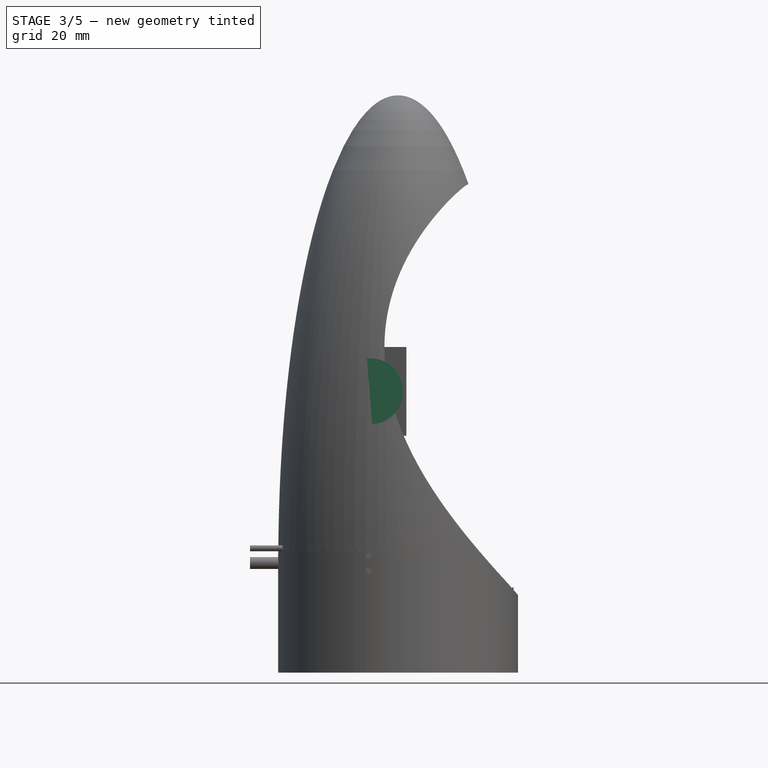
[diagram: stage 3 of 5 — front view after this stage's code; geometry added in this stage tinted green]
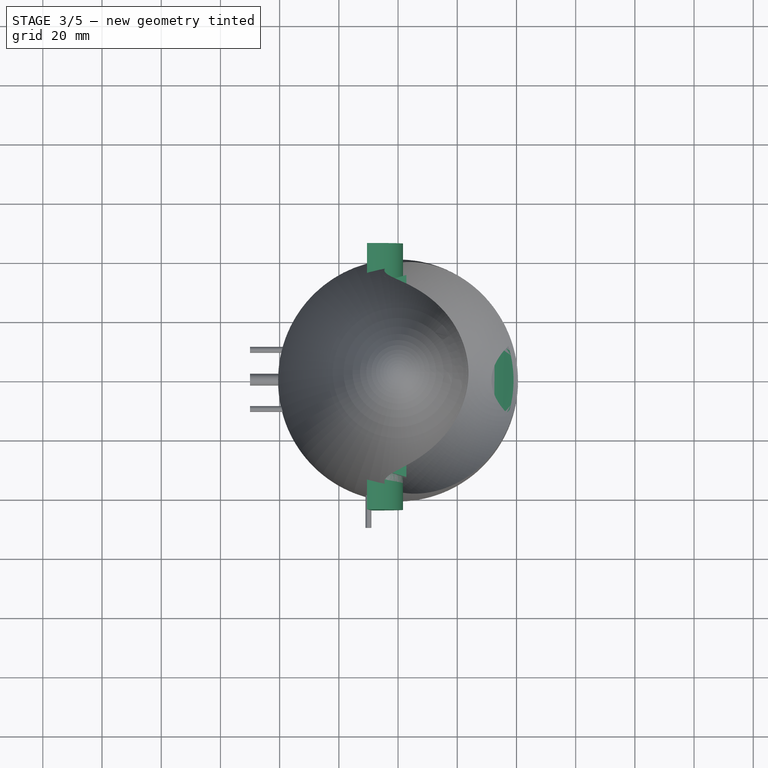
[diagram: stage 3 of 5 — top view after this stage's code; geometry added in this stage tinted green]
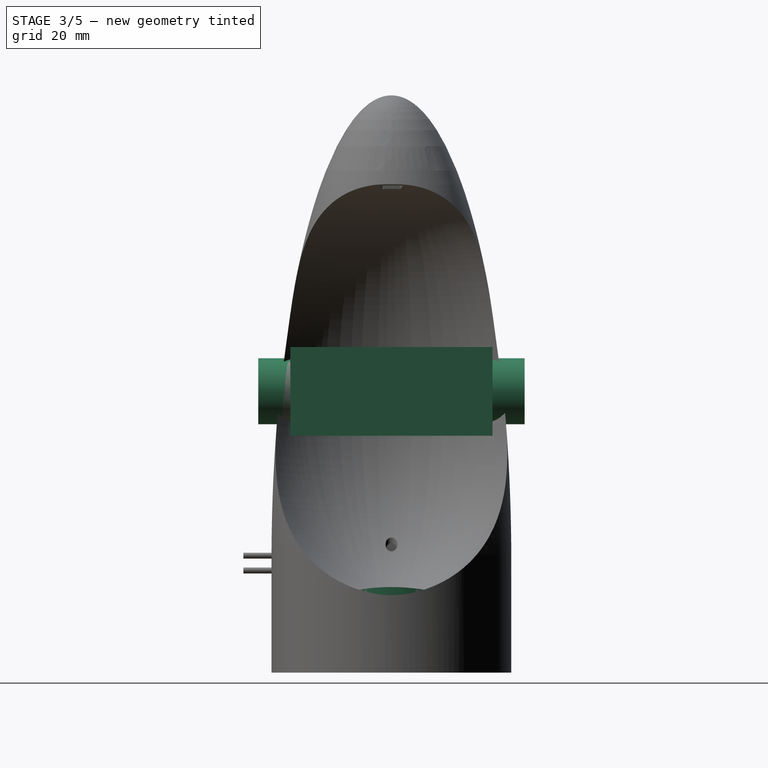
[diagram: stage 3 of 5 — right view after this stage's code; geometry added in this stage tinted green]
FEATURE [Part::Cut] Cut026
  Base = -> Cut025
  Tool = -> Cylinder006
FEATURE [Sketcher::SketchObject] Sketch121
  Placement = pos=(0,0,0) rot=(1,0,0;1.5708rad)
  sketch-geometry (4):
    g0: ArcOfCircle CenterX=4.88919 CenterY=87.6864 CenterZ=0 NormalX=0 NormalY=0 NormalZ=1 Radius=67.962 StartAngle=4.40962 EndAngle=5.58023
    g1: LineSegment StartX=-15.3744 StartY=22.8156 StartZ=0 EndX=-17.198 EndY=6.18308 EndZ=0
    g2: LineSegment StartX=-17.198 StartY=6.18308 StartZ=0 EndX=63.8538 EndY=9.30847 EndZ=0
    g3: LineSegment StartX=63.8538 StartY=9.30847 StartZ=0 EndX=56.7397 EndY=43.7506 EndZ=0
  constraints (4):
    c: Coincident(g1,g2)
    c: Coincident(g2,g3)
    c: Coincident(g3,g0)
    c: Coincident(g1,g0)
FEATURE [PartDesign::Pad] Pad012
  Length = 60
  Length2 = 100
  Midplane = true
  Placement = pos=(0,0,0) rot=(1,0,0;1.5708rad)
  Sketch = -> Sketch121
  Type = 0
FEATURE [Sketcher::SketchObject] Sketch122
  Placement = pos=(0,0,0) rot=(1,0,0;1.5708rad)
  sketch-geometry (7):
    g0: LineSegment [constr] StartX=24.6736 StartY=175.154 StartZ=0 EndX=39 EndY=-31.3969 EndZ=0
    g1: ArcOfEllipse CenterX=30.2331 CenterY=95 CenterZ=0 NormalX=0 NormalY=0 NormalZ=1 MajorRadius=70.3324 MinorRadius=50 AngleXU=1.5708 StartAngle=3.23885 EndAngle=6.38044
    g2: LineSegment [constr] StartX=30.2331 StartY=165.332 StartZ=0 EndX=30.2331 EndY=24.6676 EndZ=0
    g3: LineSegment [constr] StartX=-19.7669 StartY=95 StartZ=0 EndX=80.2331 EndY=95 EndZ=0
    g4: GeomPoint [constr] X=30.2331 Y=144.464 Z=0
    g5: GeomPoint [constr] X=30.2331 Y=45.5365 Z=0
    g6: LineSegment StartX=25.3779 StartY=165 StartZ=0 EndX=35.0883 EndY=25 EndZ=0
  constraints (11):
    c: DistanceX(g-1,g0) = 39
    c: InternalAlignment(g2-g5 -> g1) x4
    c: PointOnObject(g1,g0)
    c: PointOnObject(g1,g0)
    c: PointOnObject(g1,g0)
    c: Vertical(g2)
    c: DistanceY(g1,g1) = 140
    c: DistanceY(g-1,g1) = 165
    c: DistanceX(g1,g3) = 50
    c: Coincident(g6,g1)
    c: Coincident(g6,g1)
FEATURE [PartDesign::Revolution] Revolution045  label="Öffnung_dense018"
  Angle = 360
  Axis = (14.3264,0,-206.551)
  Base = (24.6736,0,175.154)
  Placement = pos=(0,0,0) rot=(1,0,0;1.5708rad)
  ReferenceAxis = -> Sketch122 [Axis0]
  Sketch = -> Sketch122
FEATURE [Sketcher::SketchObject] Sketch123
  Placement = pos=(0,0,0) rot=(1,0,0;1.5708rad)
  sketch-geometry (9):
    g0: LineSegment StartX=40.5 StartY=0 StartZ=0 EndX=40.5 EndY=40 EndZ=0
    g1: ArcOfEllipse CenterX=0 CenterY=37.6991 CenterZ=0 NormalX=0 NormalY=0 NormalZ=1 MajorRadius=157.301 MinorRadius=40.5043 AngleXU=-1.5708 StartAngle=1.58542 EndAngle=3.14159
    g2: LineSegment [constr] StartX=40.5043 StartY=37.6991 StartZ=0 EndX=-40.5043 EndY=37.6991 EndZ=0
    g3: GeomPoint [constr] X=-7.7467e-08 Y=-114.298 Z=0
    g4: GeomPoint [constr] X=7.7467e-08 Y=189.696 Z=0
    g5: ArcOfCircle CenterX=0 CenterY=178 CenterZ=0 NormalX=0 NormalY=0 NormalZ=1 Radius=17 StartAngle=1.5708 EndAngle=1.5708
    g6: GeomPoint [constr] X=1.93676e-07 Y=195 Z=0
    g7: LineSegment StartX=0 StartY=0 StartZ=0 EndX=40.5 EndY=0 EndZ=0
    g8: LineSegment StartX=0 StartY=0 StartZ=0 EndX=0 EndY=195 EndZ=0
  constraints (21):
    c: Vertical(g0)
    c: DistanceX(g-1,g0) = 40.5
    c: InternalAlignment(g2,g1)
    c: InternalAlignment(g3,g1)
    c: InternalAlignment(g4,g1)
    c: PointOnObject(g1,g-2)
    c: Coincident(g1,g0)
    c: PointOnObject(g5,g-2)
    c: PointOnObject(g5,g-2)
    c: Coincident(g1,g5)
    c: PointOnObject(g6,g1)
    c: PointOnObject(g6,g5)
    c: Tangent(g1,g5,g6) = -1.5708
    c: Radius(g5) = 17
    c: DistanceY(g2,g0) = 2.30092
    c: Coincident(g7,g-1)
    c: Coincident(g7,g0)
    c: Horizontal(g7)
    c: Coincident(g8,g-1)
    c: Coincident(g8,g1)
    c: Vertical(g8)
FEATURE [PartDesign::Revolution] Revolution046
  Angle = 360
  Axis = (0,0,1)
  Base = (0,0,0)
  Placement = pos=(0,0,0) rot=(1,0,0;1.5708rad)
  ReferenceAxis = -> Sketch123 [V_Axis]
  Reversed = true
  Sketch = -> Sketch123
FEATURE [Part::MultiCommon] Common029
  Shapes = -> [Revolution045,Revolution046]
FEATURE [Part::MultiCommon] Common030
  Shapes = -> [Pad012,Common029]
FEATURE [Sketcher::SketchObject] Sketch124
  Placement = pos=(0,0,0) rot=(1,0,0;1.5708rad)
  sketch-geometry (7):
    g0: LineSegment [constr] StartX=24.6736 StartY=175.154 StartZ=0 EndX=39 EndY=-31.3969 EndZ=0
    g1: ArcOfEllipse CenterX=30.2331 CenterY=95 CenterZ=0 NormalX=0 NormalY=0 NormalZ=1 MajorRadius=70.3324 MinorRadius=50 AngleXU=1.5708 StartAngle=3.23885 EndAngle=6.38044
    g2: LineSegment [constr] StartX=30.2331 StartY=165.332 StartZ=0 EndX=30.2331 EndY=24.6676 EndZ=0
    g3: LineSegment [constr] StartX=-19.7669 StartY=95 StartZ=0 EndX=80.2331 EndY=95 EndZ=0
    g4: GeomPoint [constr] X=30.2331 Y=144.464 Z=0
    g5: GeomPoint [constr] X=30.2331 Y=45.5365 Z=0
    g6: LineSegment StartX=25.3779 StartY=165 StartZ=0 EndX=35.0883 EndY=25 EndZ=0
  constraints (11):
    c: DistanceX(g-1,g0) = 39
    c: InternalAlignment(g2-g5 -> g1) x4
    c: PointOnObject(g1,g0)
    c: PointOnObject(g1,g0)
    c: PointOnObject(g1,g0)
    c: Vertical(g2)
    c: DistanceY(g1,g1) = 140
    c: DistanceY(g-1,g1) = 165
    c: DistanceX(g1,g3) = 50
    c: Coincident(g6,g1)
    c: Coincident(g6,g1)
FEATURE [PartDesign::Revolution] Revolution047  label="Öffnung_dense019"
  Angle = 360
  Axis = (14.3264,0,-206.551)
  Base = (24.6736,0,175.154)
  Placement = pos=(0,0,0) rot=(1,0,0;1.5708rad)
  ReferenceAxis = -> Sketch124 [Axis0]
  Sketch = -> Sketch124
FEATURE [Sketcher::SketchObject] Sketch125
  Placement = pos=(0,0,0) rot=(1,0,0;1.5708rad)
  sketch-geometry (9):
    g0: LineSegment StartX=40.5 StartY=0 StartZ=0 EndX=40.5 EndY=40 EndZ=0
    g1: ArcOfEllipse CenterX=0 CenterY=37.6991 CenterZ=0 NormalX=0 NormalY=0 NormalZ=1 MajorRadius=157.301 MinorRadius=40.5043 AngleXU=-1.5708 StartAngle=1.58542 EndAngle=3.14159
    g2: LineSegment [constr] StartX=40.5043 StartY=37.6991 StartZ=0 EndX=-40.5043 EndY=37.6991 EndZ=0
    g3: GeomPoint [constr] X=-7.7467e-08 Y=-114.298 Z=0
    g4: GeomPoint [constr] X=7.7467e-08 Y=189.696 Z=0
    g5: ArcOfCircle CenterX=0 CenterY=178 CenterZ=0 NormalX=0 NormalY=0 NormalZ=1 Radius=17 StartAngle=1.5708 EndAngle=1.5708
    g6: GeomPoint [constr] X=1.93676e-07 Y=195 Z=0
    g7: LineSegment StartX=0 StartY=0 StartZ=0 EndX=40.5 EndY=0 EndZ=0
    g8: LineSegment StartX=0 StartY=0 StartZ=0 EndX=0 EndY=195 EndZ=0
  constraints (21):
    c: Vertical(g0)
    c: DistanceX(g-1,g0) = 40.5
    c: InternalAlignment(g2,g1)
    c: InternalAlignment(g3,g1)
    c: InternalAlignment(g4,g1)
    c: PointOnObject(g1,g-2)
    c: Coincident(g1,g0)
    c: PointOnObject(g5,g-2)
    c: PointOnObject(g5,g-2)
    c: Coincident(g1,g5)
    c: PointOnObject(g6,g1)
    c: PointOnObject(g6,g5)
    c: Tangent(g1,g5,g6) = -1.5708
    c: Radius(g5) = 17
    c: DistanceY(g2,g0) = 2.30092
    c: Coincident(g7,g-1)
    c: Coincident(g7,g0)
    c: Horizontal(g7)
    c: Coincident(g8,g-1)
    c: Coincident(g8,g1)
    c: Vertical(g8)
FEATURE [PartDesign::Revolution] Revolution048
  Angle = 360
  Axis = (0,0,1)
  Base = (0,0,0)
  Placement = pos=(0,0,0) rot=(1,0,0;1.5708rad)
  ReferenceAxis = -> Sketch125 [V_Axis]
  Reversed = true
  Sketch = -> Sketch125
FEATURE [Part::MultiCommon] Common031
  Shapes = -> [Revolution047,Revolution048]
FEATURE [Sketcher::SketchObject] Sketch126
  Placement = pos=(0,0,0) rot=(1,0,0;1.5708rad)
  sketch-geometry (10):
    g0: LineSegment StartX=39 StartY=40 StartZ=0 EndX=39 EndY=15 EndZ=0
    g1: LineSegment StartX=39 StartY=15 StartZ=0 EndX=39.5 EndY=0 EndZ=0
    g2: ArcOfCircle CenterX=0 CenterY=178 CenterZ=0 NormalX=0 NormalY=0 NormalZ=1 Radius=15 StartAngle=1.5708 EndAngle=1.5708
    g3: ArcOfEllipse CenterX=0 CenterY=37.6991 CenterZ=0 NormalX=0 NormalY=0 NormalZ=1 MajorRadius=155.301 MinorRadius=39.0043 AngleXU=1.5708 StartAngle=4.72721 EndAngle=6.28319
    g4: LineSegment [constr] StartX=0 StartY=193 StartZ=0 EndX=0 EndY=-117.602 EndZ=0
    g5: LineSegment [constr] StartX=-39.0043 StartY=37.6991 StartZ=0 EndX=39.0043 EndY=37.6991 EndZ=0
    g6: GeomPoint [constr] X=-1.6e-11 Y=188.022 Z=0
    g7: GeomPoint [constr] X=0 Y=-112.624 Z=0
    g8: LineSegment StartX=0 StartY=0 StartZ=0 EndX=-2e-12 EndY=193 EndZ=0
    g9: LineSegment StartX=0 StartY=0 StartZ=0 EndX=39.5 EndY=0 EndZ=0
  constraints (15):
    c: Vertical(g0)
    c: Coincident(g0,g1)
    c: DistanceY(g1,g0) = 15
    c: PointOnObject(g2,g-2)
    c: Radius(g2) = 15
    c: InternalAlignment(g4-g7 -> g3) x4
    c: Vertical(g4)
    c: Coincident(g3,g2)
    c: Coincident(g3,g0)
    c: Coincident(g8,g2)
    c: Coincident(g8,g-1)
    c: Coincident(g9,g-1)
    c: Coincident(g9,g1)
    c: Horizontal(g9)
    c: DistanceX(g9,g9) = 39.5
FEATURE [PartDesign::Revolution] Revolution049
  Angle = 360
  Axis = (0,0,1)
  Base = (0,0,0)
  Placement = pos=(0,0,0) rot=(1,0,0;1.5708rad)
  ReferenceAxis = -> Sketch126 [V_Axis]
  Reversed = true
  Sketch = -> Sketch126
FEATURE [Part::Cut] Cut027  label="Fallschirmtüre006"
  Base = -> Common031
  Tool = -> Revolution049
FEATURE [Part::Cut] Cut028
  Base = -> Common030
  Tool = -> Cut027
FEATURE [Part::Cut] Cut029
  Base = -> Cut026
  Tool = -> Pad013
FEATURE [Sketcher::SketchObject] Sketch134
  Placement = pos=(0,0,0) rot=(1,0,0;1.5708rad)
  sketch-geometry (2):
    g0: ArcOfCircle CenterX=-9.47802 CenterY=95.0493 CenterZ=0 NormalX=0 NormalY=0 NormalZ=1 Radius=11.1643 StartAngle=4.77716 EndAngle=7.94536
    g1: LineSegment StartX=-10.4968 StartY=106.167 StartZ=0 EndX=-8.75536 EndY=83.9085 EndZ=0
  constraints (2):
    c: Coincident(g1,g0)
    c: Coincident(g1,g0)
FEATURE [PartDesign::Pad] Pad014
  Length = 90
  Length2 = 100
  Midplane = true
  Placement = pos=(0,0,0) rot=(1,0,0;1.5708rad)
  Sketch = -> Sketch134
  Type = 0
FEATURE [Sketcher::SketchObject] Sketch135
  Placement = pos=(0,0,80) rot=(0,0,1;0rad)
  sketch-geometry (4):
    g0: LineSegment StartX=-10.4081 StartY=30.3819 StartZ=0 EndX=-10.4081 EndY=-30.3819 EndZ=0
    g1: LineSegment StartX=-10.4081 StartY=-30.3819 StartZ=0 EndX=2.8182 EndY=-34.1326 EndZ=0
    g2: LineSegment StartX=2.8182 StartY=-34.1326 StartZ=0 EndX=2.8182 EndY=34.1326 EndZ=0
    g3: LineSegment StartX=2.8182 StartY=34.1326 StartZ=0 EndX=-10.4081 EndY=30.3819 EndZ=0
  constraints (7):
    c: Vertical(g0)
    c: Coincident(g0,g1)
    c: Coincident(g1,g2)
    c: Coincident(g2,g3)
    c: Coincident(g3,g0)
    c: Symmetric(g0,g0,g-1)
    c: Symmetric(g2,g1,g-1)
FEATURE [PartDesign::Pad] Pad015
  Length = 30
  Length2 = 100
  Placement = pos=(0,0,80) rot=(0,0,1;0rad)
  Sketch = -> Sketch135
  Type = 0
FEATURE [Part::MultiFuse] Fusion009
  Shapes = -> [Cut028,Cut029]
FEATURE [Part::MultiFuse] Fusion010
  Shapes = -> [Common041,Fusion009]
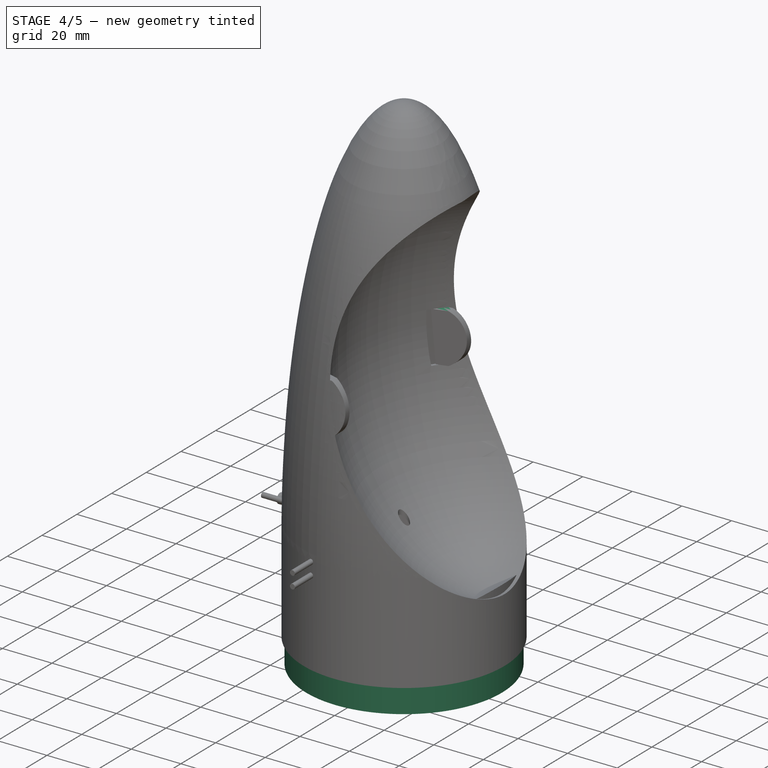
[diagram: stage 4 of 5 — iso view after this stage's code; geometry added in this stage tinted green]
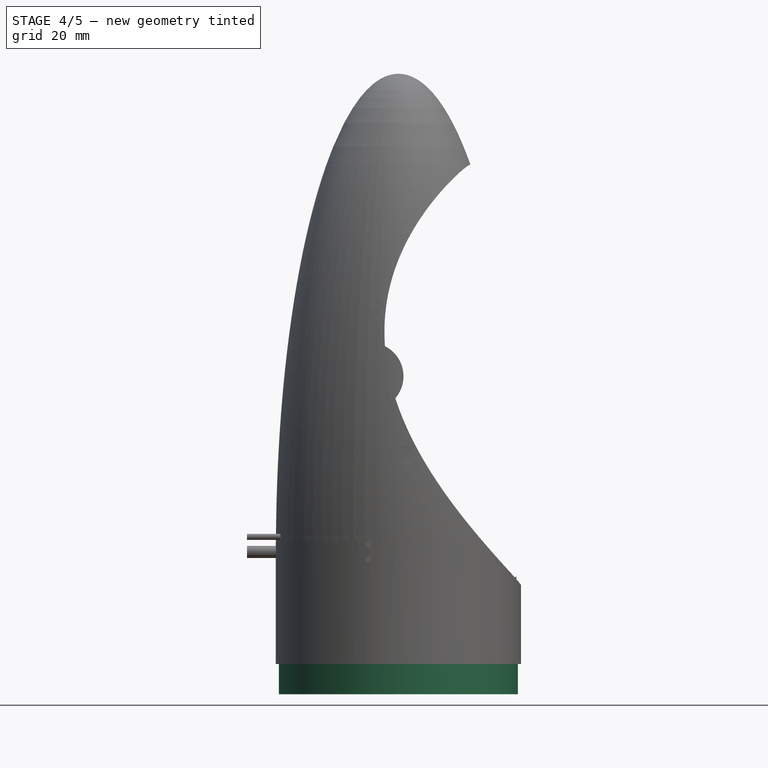
[diagram: stage 4 of 5 — front view after this stage's code; geometry added in this stage tinted green]
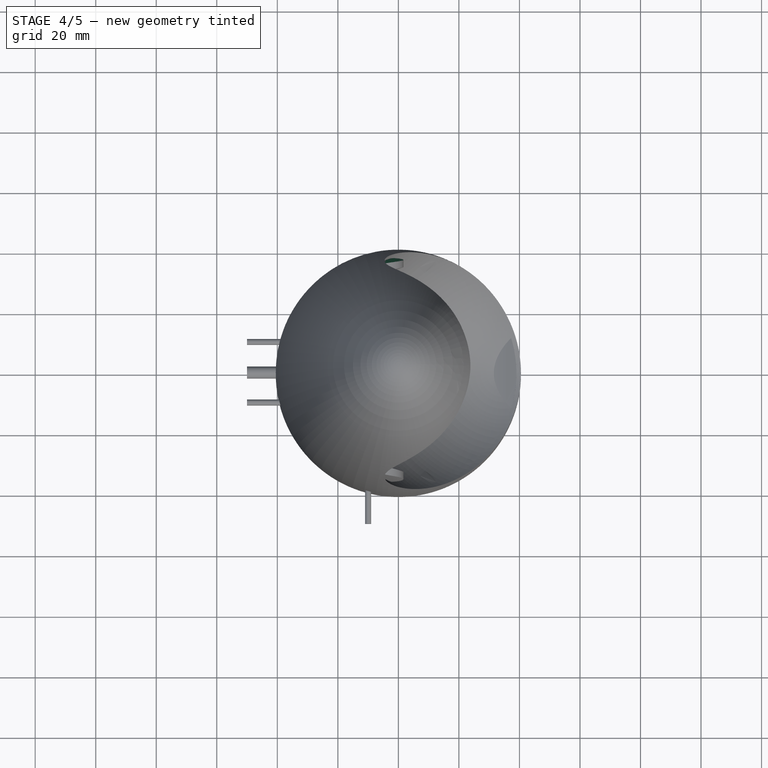
[diagram: stage 4 of 5 — top view after this stage's code; geometry added in this stage tinted green]
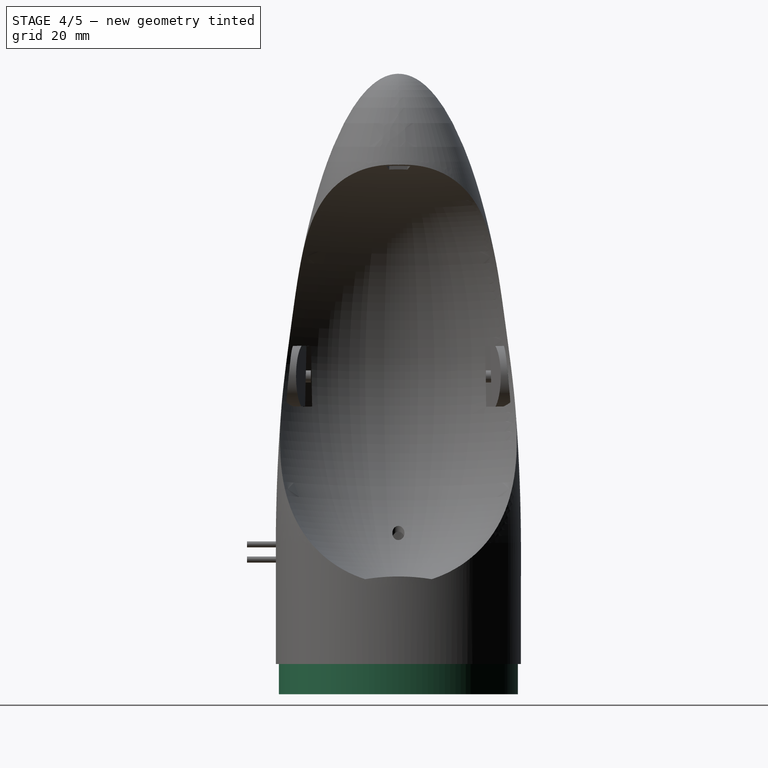
[diagram: stage 4 of 5 — right view after this stage's code; geometry added in this stage tinted green]
FEATURE [Part::Cylinder] Cylinder003  label="Zylinder003"
  Angle = 360
  Height = 10
  Placement = pos=(0,0,-10) rot=(0,0,1;0rad)
  Radius = 39.5
FEATURE [Part::Box] Box008  label="Seitenhalter 005"
  Height = 20
  Length = 30
  Placement = pos=(-19,30,85) rot=(1,0,0;0.017453rad)
  Width = 10
FEATURE [Sketcher::SketchObject] Sketch128
  Placement = pos=(0,0,0) rot=(1,0,0;1.5708rad)
  sketch-geometry (5):
    g0: LineSegment StartX=40.5 StartY=0 StartZ=0 EndX=40.5 EndY=40 EndZ=0
    g1: ArcOfEllipse CenterX=-5.9389e-08 CenterY=37.6991 CenterZ=0 NormalX=0 NormalY=0 NormalZ=1 MajorRadius=157.301 MinorRadius=40.5043 AngleXU=-1.5708 StartAngle=1.58542 EndAngle=3.14159
    g2: GeomPoint [constr] X=-1.6e-11 Y=-114.298 Z=0
    g3: LineSegment StartX=40.5 StartY=0 StartZ=0 EndX=0 EndY=0 EndZ=0
    g4: LineSegment StartX=0 StartY=195 StartZ=0 EndX=0 EndY=0 EndZ=0
  constraints (9):
    c: PointOnObject(g0,g-1)
    c: Vertical(g0)
    c: DistanceX(g-1,g0) = 40.5
    c: InternalAlignment(g2,g1)
    c: Coincident(g3,g0)
    c: Coincident(g3,g-1)
    c: Coincident(g4,g1)
    c: Coincident(g4,g-1)
    c: Vertical(g4)
FEATURE [PartDesign::Revolution] Revolution050
  Angle = 360
  Axis = (0,0,1)
  Base = (0,0,0)
  Placement = pos=(0,0,0) rot=(1,0,0;1.5708rad)
  ReferenceAxis = -> Sketch128 [V_Axis]
  Reversed = true
  Sketch = -> Sketch128
FEATURE [Part::MultiCommon] Common032
  Shapes = -> [Revolution050,Box008]
FEATURE [Sketcher::SketchObject] Sketch129
  Placement = pos=(0,0,0) rot=(1,0,0;1.5708rad)
  sketch-geometry (7):
    g0: LineSegment [constr] StartX=25.5796 StartY=175.154 StartZ=0 EndX=39 EndY=-31.3979 EndZ=0
    g1: ArcOfEllipse CenterX=30.7875 CenterY=95 CenterZ=0 NormalX=0 NormalY=0 NormalZ=1 MajorRadius=71.7927 MinorRadius=51.5 AngleXU=1.5708 StartAngle=3.23192 EndAngle=6.37351
    g2: LineSegment [constr] StartX=30.7875 StartY=166.793 StartZ=0 EndX=30.7875 EndY=23.2073 EndZ=0
    g3: LineSegment [constr] StartX=-20.7125 StartY=95 StartZ=0 EndX=82.2875 EndY=95 EndZ=0
    g4: GeomPoint [constr] X=30.7875 Y=145.019 Z=0
    g5: GeomPoint [constr] X=30.7875 Y=44.9806 Z=0
    g6: LineSegment StartX=26.1419 StartY=166.5 StartZ=0 EndX=35.4331 EndY=23.5 EndZ=0
  constraints (11):
    c: DistanceX(g-1,g0) = 39
    c: InternalAlignment(g2-g5 -> g1) x4
    c: PointOnObject(g1,g0)
    c: PointOnObject(g1,g0)
    c: PointOnObject(g1,g0)
    c: Vertical(g2)
    c: DistanceY(g1,g1) = 143
    c: DistanceY(g-1,g1) = 166.5
    c: DistanceX(g1,g3) = 51.5
    c: Coincident(g6,g1)
    c: Coincident(g6,g1)
FEATURE [PartDesign::Revolution] Revolution051  label="Öffnung_dense020"
  Angle = 360
  Axis = (13.4204,0,-206.552)
  Base = (25.5796,0,175.154)
  Placement = pos=(0,0,0) rot=(1,0,0;1.5708rad)
  ReferenceAxis = -> Sketch129 [Axis0]
  Sketch = -> Sketch129
FEATURE [Sketcher::SketchObject] Sketch130
  Placement = pos=(0,0,0) rot=(1,0,0;1.5708rad)
  sketch-geometry (9):
    g0: LineSegment StartX=40.5 StartY=0 StartZ=0 EndX=40.5 EndY=40 EndZ=0
    g1: ArcOfEllipse CenterX=0 CenterY=37.6991 CenterZ=0 NormalX=0 NormalY=0 NormalZ=1 MajorRadius=157.301 MinorRadius=40.5043 AngleXU=-1.5708 StartAngle=1.58542 EndAngle=3.14159
    g2: LineSegment [constr] StartX=40.5043 StartY=37.6991 StartZ=0 EndX=-40.5043 EndY=37.6991 EndZ=0
    g3: GeomPoint [constr] X=-7.7467e-08 Y=-114.298 Z=0
    g4: GeomPoint [constr] X=7.7467e-08 Y=189.696 Z=0
    g5: ArcOfCircle CenterX=0 CenterY=178 CenterZ=0 NormalX=0 NormalY=0 NormalZ=1 Radius=17 StartAngle=1.5708 EndAngle=1.5708
    g6: GeomPoint [constr] X=1.93676e-07 Y=195 Z=0
    g7: LineSegment StartX=0 StartY=0 StartZ=0 EndX=40.5 EndY=0 EndZ=0
    g8: LineSegment StartX=0 StartY=0 StartZ=0 EndX=0 EndY=195 EndZ=0
  constraints (21):
    c: Vertical(g0)
    c: DistanceX(g-1,g0) = 40.5
    c: InternalAlignment(g2,g1)
    c: InternalAlignment(g3,g1)
    c: InternalAlignment(g4,g1)
    c: PointOnObject(g1,g-2)
    c: Coincident(g1,g0)
    c: PointOnObject(g5,g-2)
    c: PointOnObject(g5,g-2)
    c: Coincident(g1,g5)
    c: PointOnObject(g6,g1)
    c: PointOnObject(g6,g5)
    c: Tangent(g1,g5,g6) = -1.5708
    c: Radius(g5) = 17
    c: DistanceY(g2,g0) = 2.30092
    c: Coincident(g7,g-1)
    c: Coincident(g7,g0)
    c: Horizontal(g7)
    c: Coincident(g8,g-1)
    c: Coincident(g8,g1)
    c: Vertical(g8)
FEATURE [PartDesign::Revolution] Revolution052
  Angle = 360
  Axis = (0,0,1)
  Base = (0,0,0)
  Placement = pos=(0,0,0) rot=(1,0,0;1.5708rad)
  ReferenceAxis = -> Sketch130 [V_Axis]
  Reversed = true
  Sketch = -> Sketch130
FEATURE [Part::MultiCommon] Common033
  Shapes = -> [Revolution051,Revolution052]
FEATURE [Part::MultiCommon] Common034
  Shapes = -> [Common032,Common033]
FEATURE [Sketcher::SketchObject] Sketch131
  Placement = pos=(0,0,0) rot=(1,0,0;1.5708rad)
  sketch-geometry (7):
    g0: LineSegment [constr] StartX=24.6736 StartY=175.154 StartZ=0 EndX=39 EndY=-31.3969 EndZ=0
    g1: ArcOfEllipse CenterX=30.2331 CenterY=95 CenterZ=0 NormalX=0 NormalY=0 NormalZ=1 MajorRadius=70.3324 MinorRadius=50 AngleXU=1.5708 StartAngle=3.23885 EndAngle=6.38044
    g2: LineSegment [constr] StartX=30.2331 StartY=165.332 StartZ=0 EndX=30.2331 EndY=24.6676 EndZ=0
    g3: LineSegment [constr] StartX=-19.7669 StartY=95 StartZ=0 EndX=80.2331 EndY=95 EndZ=0
    g4: GeomPoint [constr] X=30.2331 Y=144.464 Z=0
    g5: GeomPoint [constr] X=30.2331 Y=45.5365 Z=0
    g6: LineSegment StartX=25.3779 StartY=165 StartZ=0 EndX=35.0883 EndY=25 EndZ=0
  constraints (11):
    c: DistanceX(g-1,g0) = 39
    c: InternalAlignment(g2-g5 -> g1) x4
    c: PointOnObject(g1,g0)
    c: PointOnObject(g1,g0)
    c: PointOnObject(g1,g0)
    c: Vertical(g2)
    c: DistanceY(g1,g1) = 140
    c: DistanceY(g-1,g1) = 165
    c: DistanceX(g1,g3) = 50
    c: Coincident(g6,g1)
    c: Coincident(g6,g1)
FEATURE [PartDesign::Revolution] Revolution053  label="Öffnung_dense021"
  Angle = 360
  Axis = (14.3264,0,-206.551)
  Base = (24.6736,0,175.154)
  Placement = pos=(0,0,0) rot=(1,0,0;1.5708rad)
  ReferenceAxis = -> Sketch131 [Axis0]
  Sketch = -> Sketch131
FEATURE [Sketcher::SketchObject] Sketch132
  Placement = pos=(0,0,0) rot=(1,0,0;1.5708rad)
  sketch-geometry (9):
    g0: LineSegment StartX=40.5 StartY=0 StartZ=0 EndX=40.5 EndY=40 EndZ=0
    g1: ArcOfEllipse CenterX=0 CenterY=37.6991 CenterZ=0 NormalX=0 NormalY=0 NormalZ=1 MajorRadius=157.301 MinorRadius=40.5043 AngleXU=-1.5708 StartAngle=1.58542 EndAngle=3.14159
    g2: LineSegment [constr] StartX=40.5043 StartY=37.6991 StartZ=0 EndX=-40.5043 EndY=37.6991 EndZ=0
    g3: GeomPoint [constr] X=-7.7467e-08 Y=-114.298 Z=0
    g4: GeomPoint [constr] X=7.7467e-08 Y=189.696 Z=0
    g5: ArcOfCircle CenterX=0 CenterY=178 CenterZ=0 NormalX=0 NormalY=0 NormalZ=1 Radius=17 StartAngle=1.5708 EndAngle=1.5708
    g6: GeomPoint [constr] X=1.93676e-07 Y=195 Z=0
    g7: LineSegment StartX=0 StartY=0 StartZ=0 EndX=40.5 EndY=0 EndZ=0
    g8: LineSegment StartX=0 StartY=0 StartZ=0 EndX=0 EndY=195 EndZ=0
  constraints (21):
    c: Vertical(g0)
    c: DistanceX(g-1,g0) = 40.5
    c: InternalAlignment(g2,g1)
    c: InternalAlignment(g3,g1)
    c: InternalAlignment(g4,g1)
    c: PointOnObject(g1,g-2)
    c: Coincident(g1,g0)
    c: PointOnObject(g5,g-2)
    c: PointOnObject(g5,g-2)
    c: Coincident(g1,g5)
    c: PointOnObject(g6,g1)
    c: PointOnObject(g6,g5)
    c: Tangent(g1,g5,g6) = -1.5708
    c: Radius(g5) = 17
    c: DistanceY(g2,g0) = 2.30092
    c: Coincident(g7,g-1)
    c: Coincident(g7,g0)
    c: Horizontal(g7)
    c: Coincident(g8,g-1)
    c: Coincident(g8,g1)
    c: Vertical(g8)
FEATURE [PartDesign::Revolution] Revolution054
  Angle = 360
  Axis = (0,0,1)
  Base = (0,0,0)
  Placement = pos=(0,0,0) rot=(1,0,0;1.5708rad)
  ReferenceAxis = -> Sketch132 [V_Axis]
  Reversed = true
  Sketch = -> Sketch132
FEATURE [Part::MultiCommon] Common035
  Shapes = -> [Revolution053,Revolution054]
FEATURE [Sketcher::SketchObject] Sketch133
  Placement = pos=(0,0,0) rot=(1,0,0;1.5708rad)
  sketch-geometry (10):
    g0: LineSegment StartX=39 StartY=40 StartZ=0 EndX=39 EndY=15 EndZ=0
    g1: LineSegment StartX=39 StartY=15 StartZ=0 EndX=39.5 EndY=0 EndZ=0
    g2: ArcOfCircle CenterX=0 CenterY=178 CenterZ=0 NormalX=0 NormalY=0 NormalZ=1 Radius=15 StartAngle=1.5708 EndAngle=1.5708
    g3: ArcOfEllipse CenterX=0 CenterY=37.6991 CenterZ=0 NormalX=0 NormalY=0 NormalZ=1 MajorRadius=155.301 MinorRadius=39.0043 AngleXU=1.5708 StartAngle=4.72721 EndAngle=6.28319
    g4: LineSegment [constr] StartX=0 StartY=193 StartZ=0 EndX=0 EndY=-117.602 EndZ=0
    g5: LineSegment [constr] StartX=-39.0043 StartY=37.6991 StartZ=0 EndX=39.0043 EndY=37.6991 EndZ=0
    g6: GeomPoint [constr] X=-1.6e-11 Y=188.022 Z=0
    g7: GeomPoint [constr] X=0 Y=-112.624 Z=0
    g8: LineSegment StartX=0 StartY=0 StartZ=0 EndX=-2e-12 EndY=193 EndZ=0
    g9: LineSegment StartX=0 StartY=0 StartZ=0 EndX=39.5 EndY=0 EndZ=0
  constraints (15):
    c: Vertical(g0)
    c: Coincident(g0,g1)
    c: DistanceY(g1,g0) = 15
    c: PointOnObject(g2,g-2)
    c: Radius(g2) = 15
    c: InternalAlignment(g4-g7 -> g3) x4
    c: Vertical(g4)
    c: Coincident(g3,g2)
    c: Coincident(g3,g0)
    c: Coincident(g8,g2)
    c: Coincident(g8,g-1)
    c: Coincident(g9,g-1)
    c: Coincident(g9,g1)
    c: Horizontal(g9)
    c: DistanceX(g9,g9) = 39.5
FEATURE [PartDesign::Revolution] Revolution055
  Angle = 360
  Axis = (0,0,1)
  Base = (0,0,0)
  Placement = pos=(0,0,0) rot=(1,0,0;1.5708rad)
  ReferenceAxis = -> Sketch133 [V_Axis]
  Reversed = true
  Sketch = -> Sketch133
FEATURE [Part::Cut] Cut030  label="Fallschirmtüre007"
  Base = -> Common035
  Tool = -> Revolution055
FEATURE [Part::Cut] Cut031
  Base = -> Common034
  Tool = -> Cut030
FEATURE [Part::MultiCommon] Common036
  Shapes = -> [Cut031,Pad014]
FEATURE [Part::Cut] Cut032
  Base = -> Common036
  Tool = -> Pad015
FEATURE [Part::MultiFuse] Fusion011
  Shapes = -> [Fusion010,Cut032]
FEATURE [Part::MultiFuse] Fusion012
  Shapes = -> [Fusion011,Cut036]
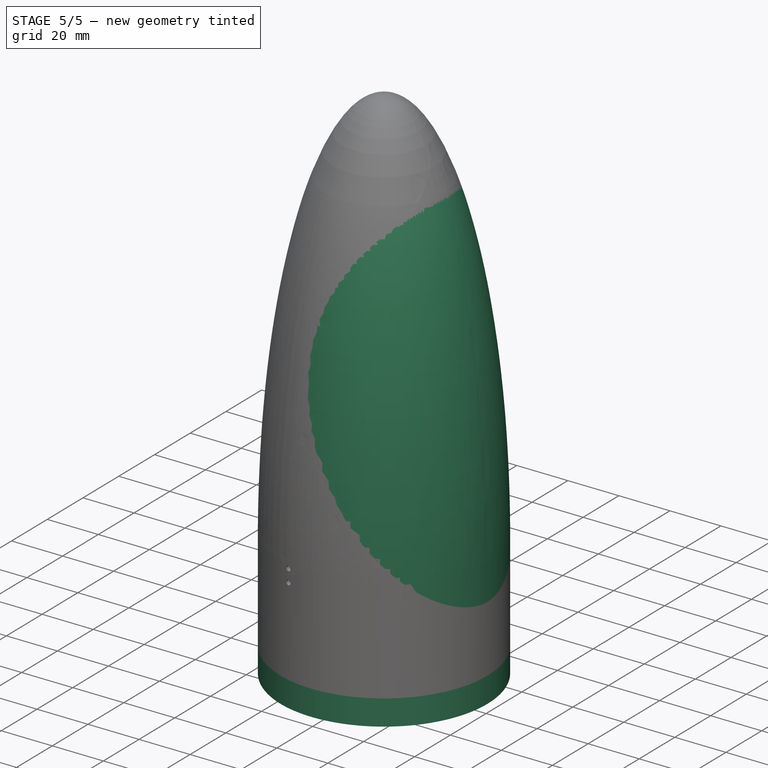
[diagram: stage 5 of 5 — iso view after this stage's code; geometry added in this stage tinted green]
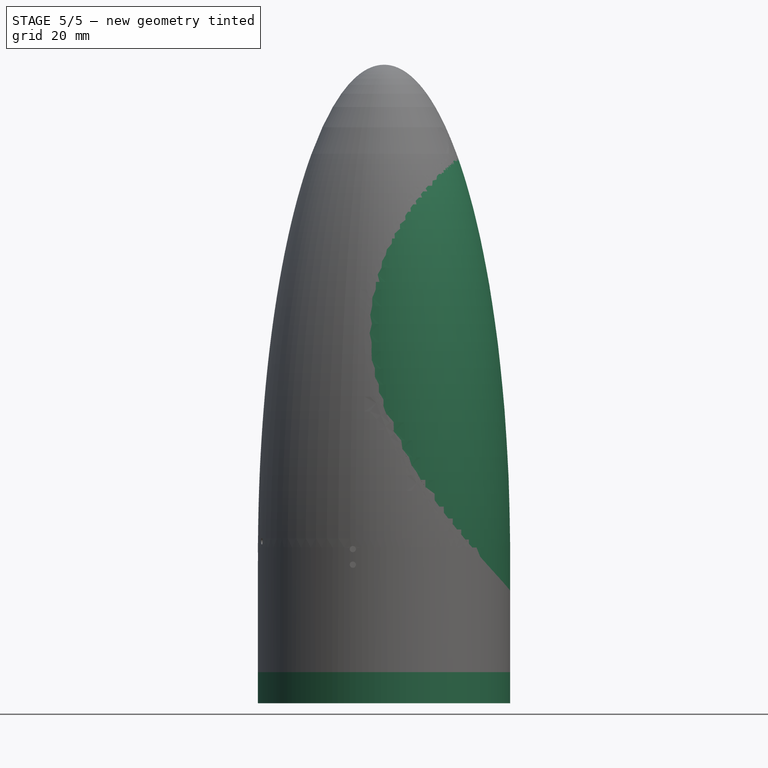
[diagram: stage 5 of 5 — front view after this stage's code; geometry added in this stage tinted green]
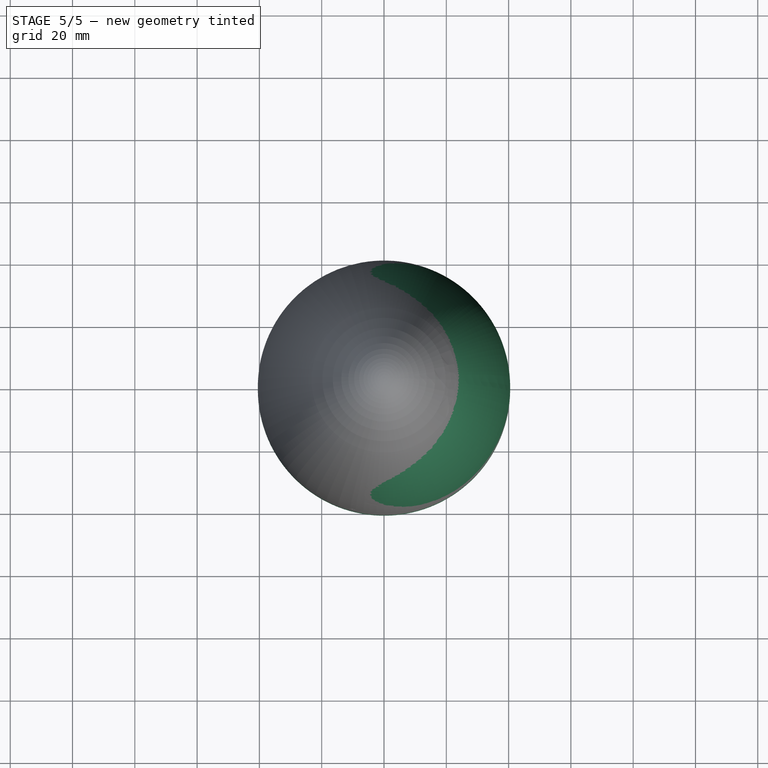
[diagram: stage 5 of 5 — top view after this stage's code; geometry added in this stage tinted green]
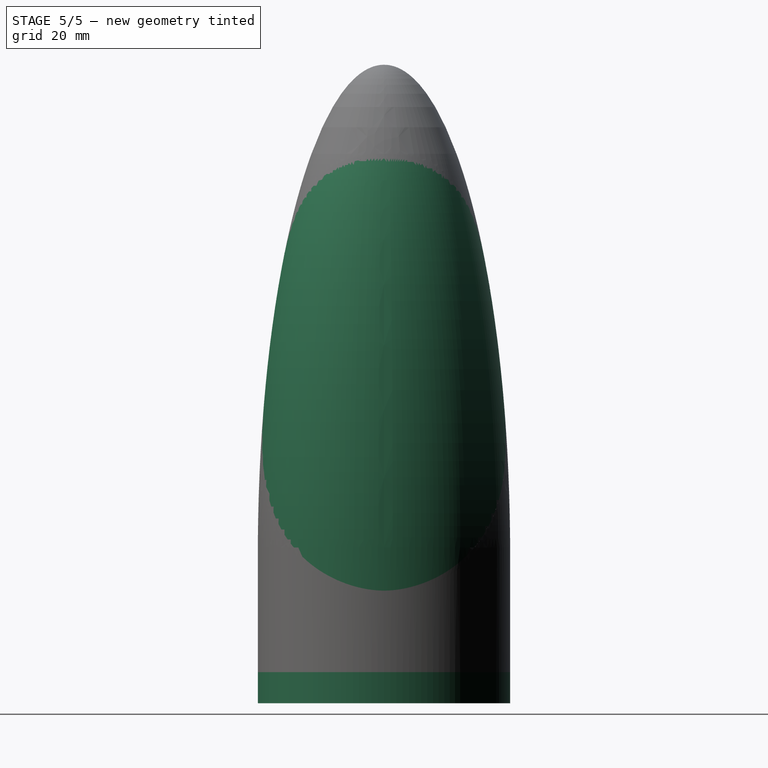
[diagram: stage 5 of 5 — right view after this stage's code; geometry added in this stage tinted green]
FEATURE [Sketcher::SketchObject] Sketch070
  Placement = pos=(0,0,0) rot=(1,0,0;1.5708rad)
  sketch-geometry (7):
    g0: LineSegment [constr] StartX=24.6736 StartY=175.154 StartZ=0 EndX=39 EndY=-31.3969 EndZ=0
    g1: ArcOfEllipse CenterX=30.2331 CenterY=95 CenterZ=0 NormalX=0 NormalY=0 NormalZ=1 MajorRadius=70.3324 MinorRadius=50 AngleXU=1.5708 StartAngle=3.23885 EndAngle=6.38044
    g2: LineSegment [constr] StartX=30.2331 StartY=165.332 StartZ=0 EndX=30.2331 EndY=24.6676 EndZ=0
    g3: LineSegment [constr] StartX=-19.7669 StartY=95 StartZ=0 EndX=80.2331 EndY=95 EndZ=0
    g4: GeomPoint [constr] X=30.2331 Y=144.464 Z=0
    g5: GeomPoint [constr] X=30.2331 Y=45.5365 Z=0
    g6: LineSegment StartX=25.3779 StartY=165 StartZ=0 EndX=35.0883 EndY=25 EndZ=0
  constraints (11):
    c: DistanceX(g-1,g0) = 39
    c: InternalAlignment(g2-g5 -> g1) x4
    c: PointOnObject(g1,g0)
    c: PointOnObject(g1,g0)
    c: PointOnObject(g1,g0)
    c: Vertical(g2)
    c: DistanceY(g1,g1) = 140
    c: DistanceY(g-1,g1) = 165
    c: DistanceX(g1,g3) = 50
    c: Coincident(g6,g1)
    c: Coincident(g6,g1)
FEATURE [PartDesign::Revolution] Revolution006  label="Öffnung_dense003"
  Angle = 360
  Axis = (14.3264,0,-206.551)
  Base = (24.6736,0,175.154)
  Placement = pos=(0,0,0) rot=(1,0,0;1.5708rad)
  ReferenceAxis = -> Sketch070 [Axis0]
  Sketch = -> Sketch070
FEATURE [Sketcher::SketchObject] Sketch071
  Placement = pos=(0,0,0) rot=(1,0,0;1.5708rad)
  sketch-geometry (9):
    g0: LineSegment StartX=40.5 StartY=0 StartZ=0 EndX=40.5 EndY=40 EndZ=0
    g1: ArcOfEllipse CenterX=0 CenterY=37.6991 CenterZ=0 NormalX=0 NormalY=0 NormalZ=1 MajorRadius=157.301 MinorRadius=40.5043 AngleXU=-1.5708 StartAngle=1.58542 EndAngle=3.14159
    g2: LineSegment [constr] StartX=40.5043 StartY=37.6991 StartZ=0 EndX=-40.5043 EndY=37.6991 EndZ=0
    g3: GeomPoint [constr] X=-7.7467e-08 Y=-114.298 Z=0
    g4: GeomPoint [constr] X=7.7467e-08 Y=189.696 Z=0
    g5: ArcOfCircle CenterX=0 CenterY=178 CenterZ=0 NormalX=0 NormalY=0 NormalZ=1 Radius=17 StartAngle=1.5708 EndAngle=1.5708
    g6: GeomPoint [constr] X=1.93676e-07 Y=195 Z=0
    g7: LineSegment StartX=0 StartY=0 StartZ=0 EndX=40.5 EndY=0 EndZ=0
    g8: LineSegment StartX=0 StartY=0 StartZ=0 EndX=0 EndY=195 EndZ=0
  constraints (21):
    c: Vertical(g0)
    c: DistanceX(g-1,g0) = 40.5
    c: InternalAlignment(g2,g1)
    c: InternalAlignment(g3,g1)
    c: InternalAlignment(g4,g1)
    c: PointOnObject(g1,g-2)
    c: Coincident(g1,g0)
    c: PointOnObject(g5,g-2)
    c: PointOnObject(g5,g-2)
    c: Coincident(g1,g5)
    c: PointOnObject(g6,g1)
    c: PointOnObject(g6,g5)
    c: Tangent(g1,g5,g6) = -1.5708
    c: Radius(g5) = 17
    c: DistanceY(g2,g0) = 2.30092
    c: Coincident(g7,g-1)
    c: Coincident(g7,g0)
    c: Horizontal(g7)
    c: Coincident(g8,g-1)
    c: Coincident(g8,g1)
    c: Vertical(g8)
FEATURE [PartDesign::Revolution] Revolution007
  Angle = 360
  Axis = (0,0,1)
  Base = (0,0,0)
  Placement = pos=(0,0,0) rot=(1,0,0;1.5708rad)
  ReferenceAxis = -> Sketch071 [V_Axis]
  Reversed = true
  Sketch = -> Sketch071
FEATURE [Part::MultiCommon] Common002
  Shapes = -> [Revolution006,Revolution007]
FEATURE [Sketcher::SketchObject] Sketch072
  Placement = pos=(0,0,0) rot=(1,0,0;1.5708rad)
  sketch-geometry (10):
    g0: LineSegment StartX=39 StartY=40 StartZ=0 EndX=39 EndY=15 EndZ=0
    g1: LineSegment StartX=39 StartY=15 StartZ=0 EndX=39.5 EndY=0 EndZ=0
    g2: ArcOfCircle CenterX=0 CenterY=178 CenterZ=0 NormalX=0 NormalY=0 NormalZ=1 Radius=15 StartAngle=1.5708 EndAngle=1.5708
    g3: ArcOfEllipse CenterX=0 CenterY=37.6991 CenterZ=0 NormalX=0 NormalY=0 NormalZ=1 MajorRadius=155.301 MinorRadius=39.0043 AngleXU=1.5708 StartAngle=4.72721 EndAngle=6.28319
    g4: LineSegment [constr] StartX=0 StartY=193 StartZ=0 EndX=0 EndY=-117.602 EndZ=0
    g5: LineSegment [constr] StartX=-39.0043 StartY=37.6991 StartZ=0 EndX=39.0043 EndY=37.6991 EndZ=0
    g6: GeomPoint [constr] X=-1.6e-11 Y=188.022 Z=0
    g7: GeomPoint [constr] X=0 Y=-112.624 Z=0
    g8: LineSegment StartX=0 StartY=0 StartZ=0 EndX=-2e-12 EndY=193 EndZ=0
    g9: LineSegment StartX=0 StartY=0 StartZ=0 EndX=39.5 EndY=0 EndZ=0
  constraints (15):
    c: Vertical(g0)
    c: Coincident(g0,g1)
    c: DistanceY(g1,g0) = 15
    c: PointOnObject(g2,g-2)
    c: Radius(g2) = 15
    c: InternalAlignment(g4-g7 -> g3) x4
    c: Vertical(g4)
    c: Coincident(g3,g2)
    c: Coincident(g3,g0)
    c: Coincident(g8,g2)
    c: Coincident(g8,g-1)
    c: Coincident(g9,g-1)
    c: Coincident(g9,g1)
    c: Horizontal(g9)
    c: DistanceX(g9,g9) = 39.5
FEATURE [PartDesign::Revolution] Revolution008
  Angle = 360
  Axis = (0,0,1)
  Base = (0,0,0)
  Placement = pos=(0,0,0) rot=(1,0,0;1.5708rad)
  ReferenceAxis = -> Sketch072 [V_Axis]
  Reversed = true
  Sketch = -> Sketch072
FEATURE [Part::Cut] Cut002  label="door"
  Base = -> Common002
  Tool = -> Revolution008
FEATURE [Sketcher::SketchObject] Sketch095
  Placement = pos=(0,0,160) rot=(0,0,1;0rad)
  sketch-geometry (4):
    g0: LineSegment StartX=15 StartY=2.5 StartZ=0 EndX=20 EndY=3.5 EndZ=0
    g1: LineSegment StartX=20 StartY=3.5 StartZ=0 EndX=20 EndY=-3.5 EndZ=0
    g2: LineSegment StartX=20 StartY=-3.5 StartZ=0 EndX=15 EndY=-2.5 EndZ=0
    g3: LineSegment StartX=15 StartY=-2.5 StartZ=0 EndX=15 EndY=2.5 EndZ=0
  constraints (12):
    c: Coincident(g0,g1)
    c: Vertical(g1)
    c: Coincident(g1,g2)
    c: Coincident(g2,g3)
    c: Coincident(g3,g0)
    c: Vertical(g3)
    c: Symmetric(g0,g2,g-1)
    c: Symmetric(g0,g1,g-1)
    c: DistanceY(g1,g1) = 7
    c: DistanceY(g3,g3) = 5
    c: DistanceX(g0,g0) = 5
    c: DistanceX(g-1,g0) = 15
FEATURE [PartDesign::Pad] Pad006
  Length = 8
  Length2 = 100
  Placement = pos=(0,0,160) rot=(0,0,1;0rad)
  Sketch = -> Sketch095
  Type = 0
FEATURE [Sketcher::SketchObject] Sketch096
  Placement = pos=(0,0,0) rot=(1,0,0;1.5708rad)
  sketch-geometry (4):
    g0: ArcOfCircle CenterX=16.385 CenterY=136.78 CenterZ=0 NormalX=0 NormalY=0 NormalZ=1 Radius=23.2088 StartAngle=0.120515 EndAngle=1.53413
    g1: LineSegment StartX=17.2358 StartY=159.973 StartZ=0 EndX=24.6717 EndY=179.386 EndZ=0
    g2: LineSegment StartX=24.6717 StartY=179.386 StartZ=0 EndX=62.3292 EndY=158.497 EndZ=0
    g3: LineSegment StartX=62.3292 StartY=158.497 StartZ=0 EndX=39.4255 EndY=139.571 EndZ=0
  constraints (4):
    c: Coincident(g0,g1)
    c: Coincident(g1,g2)
    c: Coincident(g2,g3)
    c: Coincident(g3,g0)
FEATURE [PartDesign::Pad] Pad007
  Length = 60
  Length2 = 100
  Midplane = true
  Placement = pos=(0,0,0) rot=(1,0,0;1.5708rad)
  Sketch = -> Sketch096
  Type = 0
FEATURE [Sketcher::SketchObject] Sketch097
  Placement = pos=(0,0,0) rot=(1,0,0;1.5708rad)
  sketch-geometry (7):
    g0: LineSegment [constr] StartX=24.6736 StartY=175.154 StartZ=0 EndX=39 EndY=-31.3969 EndZ=0
    g1: ArcOfEllipse CenterX=30.2331 CenterY=95 CenterZ=0 NormalX=0 NormalY=0 NormalZ=1 MajorRadius=70.3324 MinorRadius=50 AngleXU=1.5708 StartAngle=3.23885 EndAngle=6.38044
    g2: LineSegment [constr] StartX=30.2331 StartY=165.332 StartZ=0 EndX=30.2331 EndY=24.6676 EndZ=0
    g3: LineSegment [constr] StartX=-19.7669 StartY=95 StartZ=0 EndX=80.2331 EndY=95 EndZ=0
    g4: GeomPoint [constr] X=30.2331 Y=144.464 Z=0
    g5: GeomPoint [constr] X=30.2331 Y=45.5365 Z=0
    g6: LineSegment StartX=25.3779 StartY=165 StartZ=0 EndX=35.0883 EndY=25 EndZ=0
  constraints (11):
    c: DistanceX(g-1,g0) = 39
    c: InternalAlignment(g2-g5 -> g1) x4
    c: PointOnObject(g1,g0)
    c: PointOnObject(g1,g0)
    c: PointOnObject(g1,g0)
    c: Vertical(g2)
    c: DistanceY(g1,g1) = 140
    c: DistanceY(g-1,g1) = 165
    c: DistanceX(g1,g3) = 50
    c: Coincident(g6,g1)
    c: Coincident(g6,g1)
FEATURE [PartDesign::Revolution] Revolution026  label="Öffnung_dense010"
  Angle = 360
  Axis = (14.3264,0,-206.551)
  Base = (24.6736,0,175.154)
  Placement = pos=(0,0,0) rot=(1,0,0;1.5708rad)
  ReferenceAxis = -> Sketch097 [Axis0]
  Sketch = -> Sketch097
FEATURE [Sketcher::SketchObject] Sketch098
  Placement = pos=(0,0,0) rot=(1,0,0;1.5708rad)
  sketch-geometry (9):
    g0: LineSegment StartX=40.5 StartY=0 StartZ=0 EndX=40.5 EndY=40 EndZ=0
    g1: ArcOfEllipse CenterX=0 CenterY=37.6991 CenterZ=0 NormalX=0 NormalY=0 NormalZ=1 MajorRadius=157.301 MinorRadius=40.5043 AngleXU=-1.5708 StartAngle=1.58542 EndAngle=3.14159
    g2: LineSegment [constr] StartX=40.5043 StartY=37.6991 StartZ=0 EndX=-40.5043 EndY=37.6991 EndZ=0
    g3: GeomPoint [constr] X=-7.7467e-08 Y=-114.298 Z=0
    g4: GeomPoint [constr] X=7.7467e-08 Y=189.696 Z=0
    g5: ArcOfCircle CenterX=0 CenterY=178 CenterZ=0 NormalX=0 NormalY=0 NormalZ=1 Radius=17 StartAngle=1.5708 EndAngle=1.5708
    g6: GeomPoint [constr] X=1.93676e-07 Y=195 Z=0
    g7: LineSegment StartX=0 StartY=0 StartZ=0 EndX=40.5 EndY=0 EndZ=0
    g8: LineSegment StartX=0 StartY=0 StartZ=0 EndX=0 EndY=195 EndZ=0
  constraints (21):
    c: Vertical(g0)
    c: DistanceX(g-1,g0) = 40.5
    c: InternalAlignment(g2,g1)
    c: InternalAlignment(g3,g1)
    c: InternalAlignment(g4,g1)
    c: PointOnObject(g1,g-2)
    c: Coincident(g1,g0)
    c: PointOnObject(g5,g-2)
    c: PointOnObject(g5,g-2)
    c: Coincident(g1,g5)
    c: PointOnObject(g6,g1)
    c: PointOnObject(g6,g5)
    c: Tangent(g1,g5,g6) = -1.5708
    c: Radius(g5) = 17
    c: DistanceY(g2,g0) = 2.30092
    c: Coincident(g7,g-1)
    c: Coincident(g7,g0)
    c: Horizontal(g7)
    c: Coincident(g8,g-1)
    c: Coincident(g8,g1)
    c: Vertical(g8)
FEATURE [PartDesign::Revolution] Revolution027
  Angle = 360
  Axis = (0,0,1)
  Base = (0,0,0)
  Placement = pos=(0,0,0) rot=(1,0,0;1.5708rad)
  ReferenceAxis = -> Sketch098 [V_Axis]
  Reversed = true
  Sketch = -> Sketch098
FEATURE [Part::MultiCommon] Common016
  Shapes = -> [Revolution026,Revolution027]
FEATURE [Part::MultiCommon] Common017
  Shapes = -> [Pad007,Common016]
FEATURE [Part::Chamfer] Chamfer
  Base = -> Pad006
  Edges = 1 edges r=3: [Edge11]
FEATURE [Part::MultiFuse] Fusion
  Shapes = -> [Common017,Chamfer]
FEATURE [Part::MultiFuse] Fusion001
  Shapes = -> [Cut002,Fusion]
FEATURE [Part::Cylinder] Cylinder002  label="Zylinder002"
  Angle = 360
  Height = 10
  Placement = pos=(0,0,-10) rot=(0,0,1;0rad)
  Radius = 40.5
FEATURE [Part::Cut] Cut022  label="Extension"
  Base = -> Cylinder002
  Tool = -> Cylinder003
FEATURE [Part::MultiFuse] Fusion013
  Shapes = -> [Cut022,Fusion012,Cylinder008,Cylinder007]
FEATURE [Part::Cut] Cut
  Base = -> Fusion013
  Tool = -> Fusion014
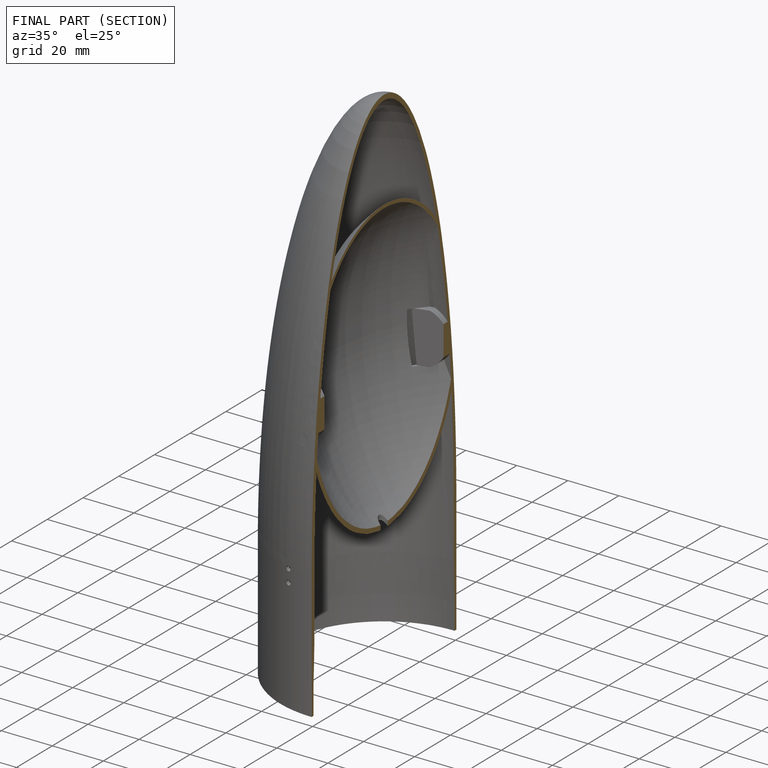
[diagram: finished part — half-section view (interior)]
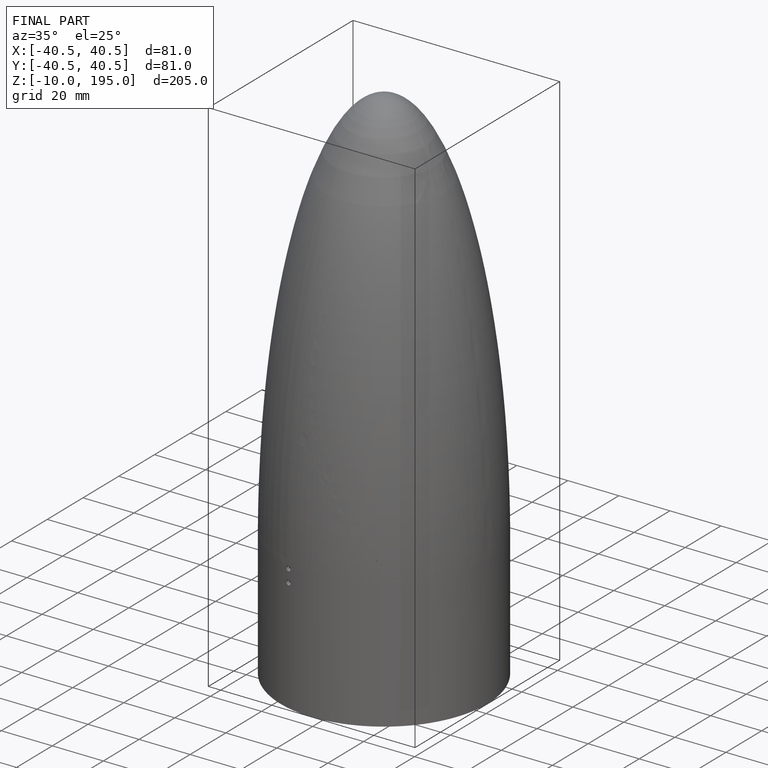
[diagram: finished part — iso view with bounding-box wireframe]
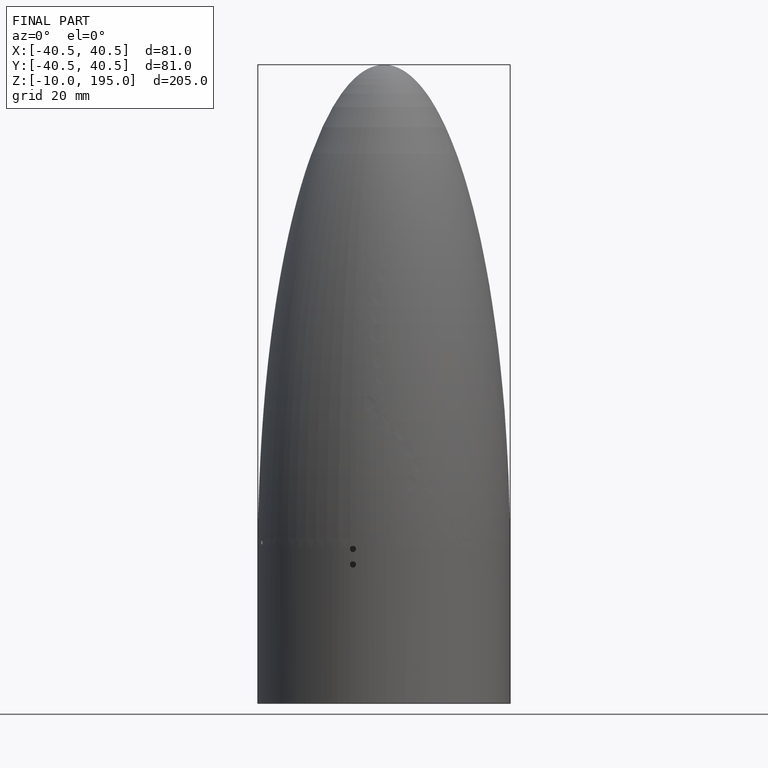
[diagram: finished part — front view with bounding-box wireframe]
